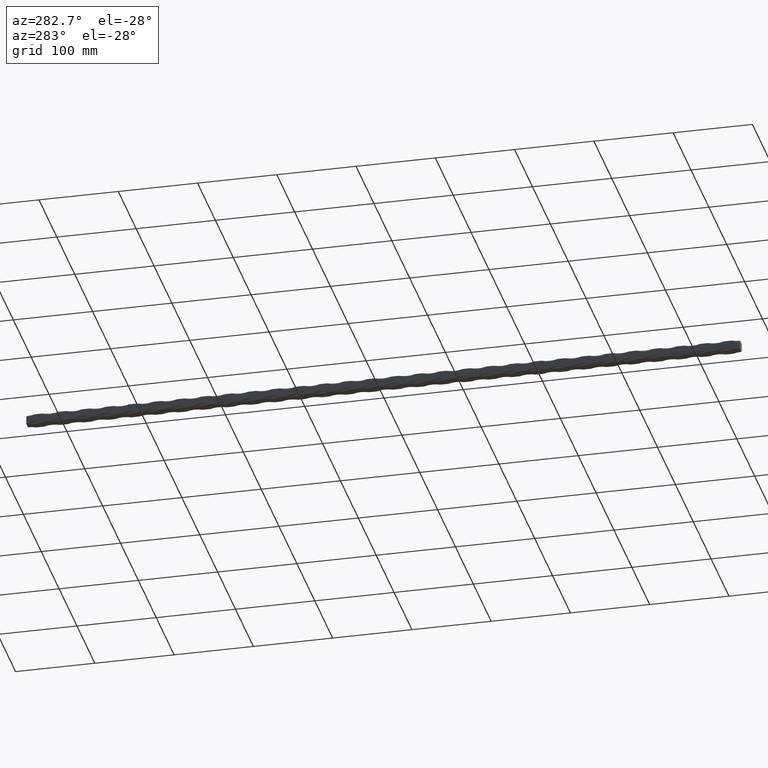
[diagram: clean part render]
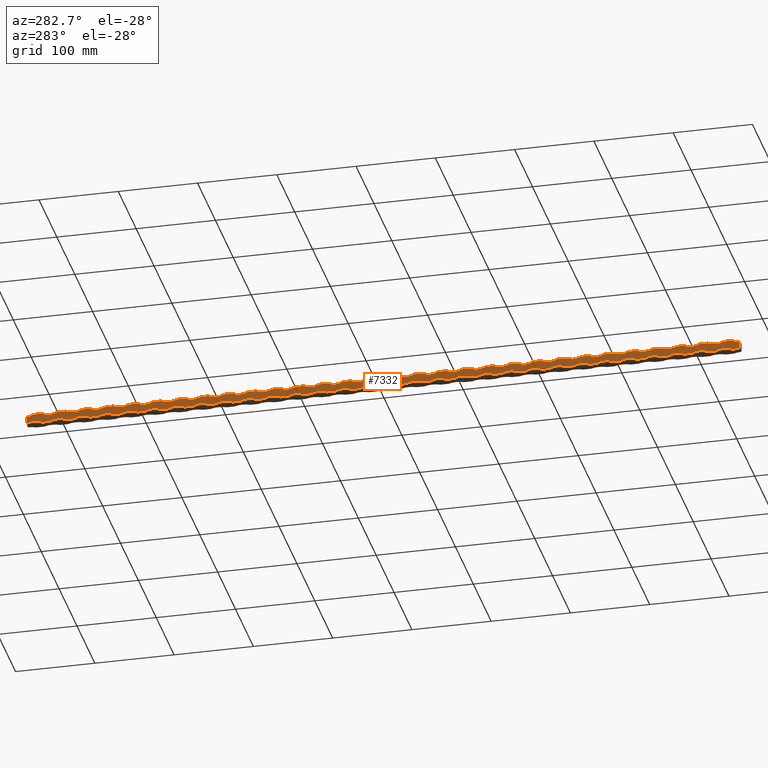
[diagram: same view with one face highlighted and labeled with its STEP entity id]
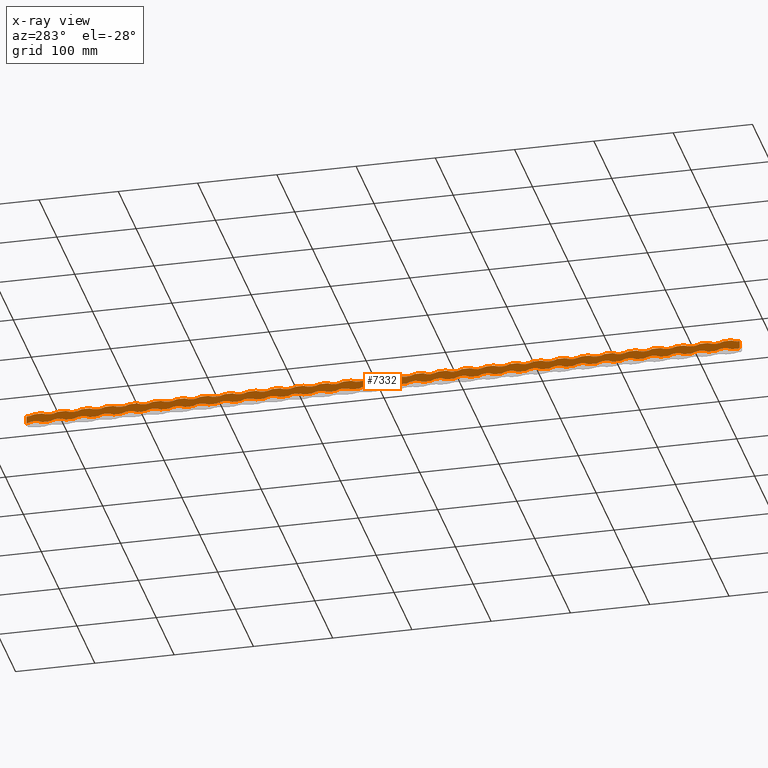
[diagram: x-ray of the same camera — body ghosted, the highlighted face saturated]
A machine part, auxiliary view. The second image highlights one B-rep face of the part: STEP entity #7332.
The next image is the same camera in x-ray: the body ghosted, the highlighted face saturated — about 0% of this face is hidden behind the body in this view.
In plain terms, the highlighted planar face has unit normal (1, 0, -0).
Its self-contained STEP definition (entity closure, byte-faithful):
#27 = ORIENTED_EDGE ( 'NONE', *, *, #2911, .T. ) ;
#29 = DIRECTION ( 'NONE',  ( -1.445602896647339410E-16, 0.000000000000000000, -1.000000000000000000 ) ) ;
#34 = VERTEX_POINT ( 'NONE', #12454 ) ;
#50 = LINE ( 'NONE', #6046, #11949 ) ;
#57 = ORIENTED_EDGE ( 'NONE', *, *, #11433, .T. ) ;
#61 = VECTOR ( 'NONE', #259, 1000.000000000000000 ) ;
#72 = CARTESIAN_POINT ( 'NONE',  ( -5.999999999999998224, -260.0000000000000000, 6.000000000000000888 ) ) ;
#75 = DIRECTION ( 'NONE',  ( 2.040851148208006026E-16, 0.000000000000000000, 1.000000000000000000 ) ) ;
#76 = EDGE_CURVE ( 'NONE', #1450, #2434, #5172, .T. ) ;
#103 = EDGE_CURVE ( 'NONE', #6562, #3145, #3738, .T. ) ;
#107 = CIRCLE ( 'NONE', #4271, 21.25000000000002487 ) ;
#111 = CARTESIAN_POINT ( 'NONE',  ( -6.000000000000002665, 0.000000000000000000, -5.999999999999963585 ) ) ;
#120 = CARTESIAN_POINT ( 'NONE',  ( -5.999999999999999112, 450.0000000000000000, 6.000000000000000888 ) ) ;
#123 = DIRECTION ( 'NONE',  ( -0.000000000000000000, -1.000000000000000000, -0.000000000000000000 ) ) ;
#126 = DIRECTION ( 'NONE',  ( 2.040851148208006026E-16, -5.224578939412495427E-15, 1.000000000000000000 ) ) ;
#135 = CARTESIAN_POINT ( 'NONE',  ( -5.999999999999999112, 450.0000000000000000, 6.000000000000000888 ) ) ;
#148 = CARTESIAN_POINT ( 'NONE',  ( -6.000000000000006217, -190.0000000000000000, -24.75000000000000000 ) ) ;
#194 = CARTESIAN_POINT ( 'NONE',  ( -5.999999999999999112, 440.0000000000000000, 6.000000000000000888 ) ) ;
#238 = CARTESIAN_POINT ( 'NONE',  ( -5.999999999999998224, -130.0000000000000000, 6.000000000000000888 ) ) ;
#244 = LINE ( 'NONE', #11941, #599 ) ;
#249 = DIRECTION ( 'NONE',  ( -0.000000000000000000, -1.000000000000000000, -0.000000000000000000 ) ) ;
#259 = DIRECTION ( 'NONE',  ( -0.000000000000000000, -1.000000000000000000, -0.000000000000000000 ) ) ;
#267 = DIRECTION ( 'NONE',  ( -1.000000000000000000, -0.000000000000000000, 1.445602896647339410E-16 ) ) ;
#282 = ORIENTED_EDGE ( 'NONE', *, *, #7293, .T. ) ;
#287 = EDGE_CURVE ( 'NONE', #9690, #2734, #779, .T. ) ;
#288 = CARTESIAN_POINT ( 'NONE',  ( -6.000000000000002665, 360.0000000000000568, -5.999999999999932498 ) ) ;
#302 = ORIENTED_EDGE ( 'NONE', *, *, #11224, .F. ) ;
#304 = EDGE_CURVE ( 'NONE', #13097, #12087, #432, .T. ) ;
#358 = EDGE_CURVE ( 'NONE', #9834, #9748, #12272, .T. ) ;
#364 = EDGE_CURVE ( 'NONE', #6249, #7019, #6708, .T. ) ;
#391 = VERTEX_POINT ( 'NONE', #13851 ) ;
#393 = DIRECTION ( 'NONE',  ( -1.632680918566404821E-16, 0.000000000000000000, -1.000000000000000000 ) ) ;
#427 = VERTEX_POINT ( 'NONE', #9162 ) ;
#428 = VERTEX_POINT ( 'NONE', #11579 ) ;
#432 = CIRCLE ( 'NONE', #14119, 21.25000000000002487 ) ;
#436 = VECTOR ( 'NONE', #4771, 1000.000000000000000 ) ;
#468 = VERTEX_POINT ( 'NONE', #10610 ) ;
#472 = VERTEX_POINT ( 'NONE', #8453 ) ;
#480 = EDGE_CURVE ( 'NONE', #14325, #2673, #4978, .T. ) ;
#554 = ORIENTED_EDGE ( 'NONE', *, *, #4806, .F. ) ;
#555 = ORIENTED_EDGE ( 'NONE', *, *, #9133, .T. ) ;
#582 = EDGE_CURVE ( 'NONE', #14335, #11080, #13308, .T. ) ;
#598 = CARTESIAN_POINT ( 'NONE',  ( -6.000000000000000888, 450.0000000000000000, -5.999999999999999112 ) ) ;
#599 = VECTOR ( 'NONE', #14063, 1000.000000000000000 ) ;
#603 = LINE ( 'NONE', #8276, #436 ) ;
#618 = VERTEX_POINT ( 'NONE', #11493 ) ;
#657 = CARTESIAN_POINT ( 'NONE',  ( -6.000000000000002665, 69.99999999999992895, -5.999999999999998224 ) ) ;
#673 = CARTESIAN_POINT ( 'NONE',  ( -5.999999999999998224, 379.9999999999999432, 6.000000000000000888 ) ) ;
#683 = CARTESIAN_POINT ( 'NONE',  ( -5.999999999999996447, 180.0000000000000000, 24.75000000000002487 ) ) ;
#687 = DIRECTION ( 'NONE',  ( -0.000000000000000000, -1.000000000000000000, -0.000000000000000000 ) ) ;
#691 = CARTESIAN_POINT ( 'NONE',  ( -6.000000000000002665, -329.9999999999999432, -5.999999999999992006 ) ) ;
#692 = CIRCLE ( 'NONE', #7326, 21.25000000000002487 ) ;
#728 = EDGE_CURVE ( 'NONE', #11430, #7336, #244, .T. ) ;
#735 = CARTESIAN_POINT ( 'NONE',  ( -5.999999999999996447, 60.00000000000000000, 24.75000000000002487 ) ) ;
#748 = ORIENTED_EDGE ( 'NONE', *, *, #10472, .F. ) ;
#753 = EDGE_CURVE ( 'NONE', #8941, #9520, #5322, .T. ) ;
#757 = ORIENTED_EDGE ( 'NONE', *, *, #582, .T. ) ;
#758 = VERTEX_POINT ( 'NONE', #10022 ) ;
#765 = VECTOR ( 'NONE', #10213, 1000.000000000000000 ) ;
#779 = LINE ( 'NONE', #3454, #61 ) ;
#784 = ORIENTED_EDGE ( 'NONE', *, *, #9221, .F. ) ;
#785 = DIRECTION ( 'NONE',  ( 2.040851148208006026E-16, 0.000000000000000000, 1.000000000000000000 ) ) ;
#792 = CARTESIAN_POINT ( 'NONE',  ( -5.999999999999995559, -149.9999999999999716, 24.75000000000002487 ) ) ;
#813 = DIRECTION ( 'NONE',  ( -0.000000000000000000, -1.000000000000000000, -0.000000000000000000 ) ) ;
#822 = CIRCLE ( 'NONE', #9197, 21.25000000000002487 ) ;
#833 = DIRECTION ( 'NONE',  ( -1.632680918566404821E-16, 0.000000000000000000, -1.000000000000000000 ) ) ;
#846 = CARTESIAN_POINT ( 'NONE',  ( -6.000000000000006217, 440.0000000000000000, -24.74999999999994671 ) ) ;
#848 = EDGE_CURVE ( 'NONE', #1273, #6850, #7741, .T. ) ;
#859 = EDGE_CURVE ( 'NONE', #13096, #428, #4427, .T. ) ;
#871 = ORIENTED_EDGE ( 'NONE', *, *, #6646, .T. ) ;
#876 = ORIENTED_EDGE ( 'NONE', *, *, #1500, .T. ) ;
#887 = DIRECTION ( 'NONE',  ( -1.000000000000000000, -0.000000000000000000, 1.445602896647339410E-16 ) ) ;
#900 = ORIENTED_EDGE ( 'NONE', *, *, #11704, .T. ) ;
#909 = AXIS2_PLACEMENT_3D ( 'NONE', #12333, #8066, #9213 ) ;
#923 = DIRECTION ( 'NONE',  ( 1.445602896647339163E-16, 0.000000000000000000, 1.000000000000000000 ) ) ;
#962 = DIRECTION ( 'NONE',  ( 2.040851148208006026E-16, 0.000000000000000000, 1.000000000000000000 ) ) ;
#967 = VERTEX_POINT ( 'NONE', #8244 ) ;
#968 = CARTESIAN_POINT ( 'NONE',  ( -6.000000000000002665, -320.0000000000000568, -5.999999999999998224 ) ) ;
#975 = VECTOR ( 'NONE', #2995, 1000.000000000000000 ) ;
#1003 = CARTESIAN_POINT ( 'NONE',  ( -5.999999999999998224, -229.9999999999999716, 6.000000000000000888 ) ) ;
#1030 = LINE ( 'NONE', #5919, #13565 ) ;
#1032 = DIRECTION ( 'NONE',  ( 1.000000000000000000, 0.000000000000000000, -2.220446049250313081E-16 ) ) ;
#1056 = LINE ( 'NONE', #3758, #2976 ) ;
#1080 = LINE ( 'NONE', #9742, #9111 ) ;
#1082 = VERTEX_POINT ( 'NONE', #12752 ) ;
#1095 = CARTESIAN_POINT ( 'NONE',  ( -6.000000000000002665, -20.00000000000008882, -5.999999999999998224 ) ) ;
#1102 = EDGE_CURVE ( 'NONE', #9570, #5633, #11778, .T. ) ;
#1111 = CARTESIAN_POINT ( 'NONE',  ( -6.000000000000000888, 450.0000000000000000, -5.999999999999999112 ) ) ;
#1130 = DIRECTION ( 'NONE',  ( 1.000000000000000000, 0.000000000000000000, -2.220446049250313081E-16 ) ) ;
#1140 = EDGE_CURVE ( 'NONE', #12563, #12364, #10165, .T. ) ;
#1141 = CARTESIAN_POINT ( 'NONE',  ( -5.999999999999998224, 350.0000000000000568, 6.000000000000000888 ) ) ;
#1144 = CARTESIAN_POINT ( 'NONE',  ( -6.000000000000000888, 450.0000000000000000, -5.999999999999999112 ) ) ;
#1156 = AXIS2_PLACEMENT_3D ( 'NONE', #13860, #10421, #3873 ) ;
#1162 = DIRECTION ( 'NONE',  ( -0.000000000000000000, -1.000000000000000000, -0.000000000000000000 ) ) ;
#1174 = EDGE_CURVE ( 'NONE', #2734, #3002, #10539, .T. ) ;
#1180 = EDGE_CURVE ( 'NONE', #428, #1450, #9638, .T. ) ;
#1194 = ORIENTED_EDGE ( 'NONE', *, *, #8125, .F. ) ;
#1208 = VECTOR ( 'NONE', #8845, 1000.000000000000000 ) ;
#1247 = CARTESIAN_POINT ( 'NONE',  ( -6.000000000000002665, 9.999999999999877431, -5.999999999999998224 ) ) ;
#1261 = AXIS2_PLACEMENT_3D ( 'NONE', #4348, #5449, #13115 ) ;
#1273 = VERTEX_POINT ( 'NONE', #3932 ) ;
#1278 = DIRECTION ( 'NONE',  ( -0.000000000000000000, -1.000000000000000000, -0.000000000000000000 ) ) ;
#1283 = AXIS2_PLACEMENT_3D ( 'NONE', #3310, #2118, #5548 ) ;
#1345 = DIRECTION ( 'NONE',  ( -1.632680918566404821E-16, 0.000000000000000000, -1.000000000000000000 ) ) ;
#1358 = CARTESIAN_POINT ( 'NONE',  ( -6.000000000000002665, 99.99999999999994316, -5.999999999999998224 ) ) ;
#1396 = DIRECTION ( 'NONE',  ( -0.000000000000000000, -1.000000000000000000, -0.000000000000000000 ) ) ;
#1425 = CARTESIAN_POINT ( 'NONE',  ( -5.999999999999996447, 269.9999999999999432, 24.75000000000002487 ) ) ;
#1438 = CIRCLE ( 'NONE', #10172, 21.25000000000002487 ) ;
#1450 = VERTEX_POINT ( 'NONE', #3728 ) ;
#1464 = ORIENTED_EDGE ( 'NONE', *, *, #8020, .T. ) ;
#1478 = EDGE_CURVE ( 'NONE', #10502, #8957, #3339, .T. ) ;
#1491 = CARTESIAN_POINT ( 'NONE',  ( -5.999999999999999112, 159.9999999999999716, 6.000000000000000888 ) ) ;
#1500 = EDGE_CURVE ( 'NONE', #12716, #9265, #1080, .T. ) ;
#1531 = LINE ( 'NONE', #10046, #12857 ) ;
#1581 = CARTESIAN_POINT ( 'NONE',  ( -5.999999999999998224, 229.9999999999999147, 6.000000000000000888 ) ) ;
#1591 = VECTOR ( 'NONE', #7541, 1000.000000000000000 ) ;
#1601 = EDGE_CURVE ( 'NONE', #12947, #14335, #12420, .T. ) ;
#1684 = VERTEX_POINT ( 'NONE', #13465 ) ;
#1697 = EDGE_CURVE ( 'NONE', #3531, #13644, #5638, .T. ) ;
#1764 = CARTESIAN_POINT ( 'NONE',  ( -5.999999999999999112, -439.9999999999999432, 6.000000000000000888 ) ) ;
#1765 = VECTOR ( 'NONE', #8814, 1000.000000000000000 ) ;
#1766 = VERTEX_POINT ( 'NONE', #8032 ) ;
#1811 = DIRECTION ( 'NONE',  ( 1.000000000000000000, 0.000000000000000000, -2.220446049250313081E-16 ) ) ;
#1872 = EDGE_CURVE ( 'NONE', #10781, #10963, #7201, .T. ) ;
#1878 = AXIS2_PLACEMENT_3D ( 'NONE', #10855, #4339, #5677 ) ;
#1896 = CARTESIAN_POINT ( 'NONE',  ( -5.999999999999995559, -180.0000000000000000, 24.75000000000002487 ) ) ;
#1932 = LINE ( 'NONE', #11785, #4038 ) ;
#1941 = ORIENTED_EDGE ( 'NONE', *, *, #13811, .F. ) ;
#1943 = ORIENTED_EDGE ( 'NONE', *, *, #6560, .F. ) ;
#1962 = ORIENTED_EDGE ( 'NONE', *, *, #4865, .T. ) ;
#1963 = ORIENTED_EDGE ( 'NONE', *, *, #3333, .T. ) ;
#1975 = ORIENTED_EDGE ( 'NONE', *, *, #364, .T. ) ;
#2021 = VERTEX_POINT ( 'NONE', #3095 ) ;
#2025 = VERTEX_POINT ( 'NONE', #6487 ) ;
#2026 = CARTESIAN_POINT ( 'NONE',  ( -5.999999999999999112, 450.0000000000000000, 6.000000000000000888 ) ) ;
#2042 = CARTESIAN_POINT ( 'NONE',  ( -6.000000000000006217, 290.0000000000000000, -24.74999999999996092 ) ) ;
#2047 = AXIS2_PLACEMENT_3D ( 'NONE', #2174, #7668, #6652 ) ;
#2057 = LINE ( 'NONE', #1111, #13019 ) ;
#2058 = EDGE_CURVE ( 'NONE', #11400, #6249, #13985, .T. ) ;
#2068 = VECTOR ( 'NONE', #6961, 1000.000000000000000 ) ;
#2072 = CARTESIAN_POINT ( 'NONE',  ( -6.000000000000000888, -450.0000000000000000, -5.999999999999999112 ) ) ;
#2118 = DIRECTION ( 'NONE',  ( 1.000000000000000000, 0.000000000000000000, -2.220446049250313081E-16 ) ) ;
#2142 = CARTESIAN_POINT ( 'NONE',  ( -5.999999999999999112, 430.0000000000000000, 6.000000000000000888 ) ) ;
#2159 = CARTESIAN_POINT ( 'NONE',  ( -6.000000000000002665, -149.9999999999999716, -5.999999999999976907 ) ) ;
#2174 = CARTESIAN_POINT ( 'NONE',  ( -5.999999999999995559, -270.0000000000000000, 24.75000000000002487 ) ) ;
#2177 = ORIENTED_EDGE ( 'NONE', *, *, #10506, .T. ) ;
#2216 = CARTESIAN_POINT ( 'NONE',  ( -6.000000000000000888, 450.0000000000000000, -5.999999999999999112 ) ) ;
#2223 = DIRECTION ( 'NONE',  ( 1.000000000000000000, 0.000000000000000000, -2.220446049250313081E-16 ) ) ;
#2231 = CARTESIAN_POINT ( 'NONE',  ( -6.000000000000000888, 450.0000000000000000, -5.999999999999999112 ) ) ;
#2243 = LINE ( 'NONE', #3799, #2068 ) ;
#2276 = ORIENTED_EDGE ( 'NONE', *, *, #12513, .T. ) ;
#2281 = CARTESIAN_POINT ( 'NONE',  ( -6.000000000000006217, 49.99999999999998579, -24.74999999999997868 ) ) ;
#2331 = DIRECTION ( 'NONE',  ( 2.040851148208006026E-16, 0.000000000000000000, 1.000000000000000000 ) ) ;
#2336 = VERTEX_POINT ( 'NONE', #238 ) ;
#2362 = CARTESIAN_POINT ( 'NONE',  ( -5.999999999999996447, 300.0000000000000000, 24.75000000000002487 ) ) ;
#2364 = LINE ( 'NONE', #14213, #6643 ) ;
#2387 = AXIS2_PLACEMENT_3D ( 'NONE', #4849, #5836, #4683 ) ;
#2400 = CIRCLE ( 'NONE', #6971, 21.25000000000002487 ) ;
#2402 = AXIS2_PLACEMENT_3D ( 'NONE', #9366, #13739, #6040 ) ;
#2406 = DIRECTION ( 'NONE',  ( -1.632680918566404821E-16, 0.000000000000000000, -1.000000000000000000 ) ) ;
#2412 = CARTESIAN_POINT ( 'NONE',  ( -6.000000000000002665, -380.0000000000000000, -5.999999999999998224 ) ) ;
#2413 = VECTOR ( 'NONE', #10089, 1000.000000000000000 ) ;
#2425 = DIRECTION ( 'NONE',  ( -1.000000000000000000, -0.000000000000000000, 1.445602896647339410E-16 ) ) ;
#2428 = DIRECTION ( 'NONE',  ( 1.000000000000000000, 0.000000000000000000, -2.220446049250313081E-16 ) ) ;
#2434 = VERTEX_POINT ( 'NONE', #4039 ) ;
#2435 = DIRECTION ( 'NONE',  ( 2.040851148208006026E-16, 0.000000000000000000, 1.000000000000000000 ) ) ;
#2453 = VECTOR ( 'NONE', #2515, 1000.000000000000000 ) ;
#2490 = DIRECTION ( 'NONE',  ( -0.000000000000000000, -1.000000000000000000, -0.000000000000000000 ) ) ;
#2494 = DIRECTION ( 'NONE',  ( 2.040851148208006026E-16, 0.000000000000000000, 1.000000000000000000 ) ) ;
#2497 = AXIS2_PLACEMENT_3D ( 'NONE', #1896, #14168, #12003 ) ;
#2503 = ORIENTED_EDGE ( 'NONE', *, *, #3259, .F. ) ;
#2508 = CARTESIAN_POINT ( 'NONE',  ( -6.000000000000006217, -70.00000000000000000, -24.74999999999998934 ) ) ;
#2515 = DIRECTION ( 'NONE',  ( -0.000000000000000000, -1.000000000000000000, -0.000000000000000000 ) ) ;
#2525 = DIRECTION ( 'NONE',  ( -0.000000000000000000, -1.000000000000000000, -0.000000000000000000 ) ) ;
#2529 = EDGE_CURVE ( 'NONE', #2916, #1766, #9260, .T. ) ;
#2553 = VECTOR ( 'NONE', #5378, 1000.000000000000000 ) ;
#2564 = ORIENTED_EDGE ( 'NONE', *, *, #10776, .F. ) ;
#2567 = AXIS2_PLACEMENT_3D ( 'NONE', #2879, #4001, #2775 ) ;
#2584 = CARTESIAN_POINT ( 'NONE',  ( -5.999999999999995559, -29.99999999999997158, 24.75000000000002487 ) ) ;
#2597 = DIRECTION ( 'NONE',  ( 2.040851148208006026E-16, 0.000000000000000000, 1.000000000000000000 ) ) ;
#2625 = VECTOR ( 'NONE', #9464, 1000.000000000000000 ) ;
#2632 = ORIENTED_EDGE ( 'NONE', *, *, #9249, .F. ) ;
#2643 = DIRECTION ( 'NONE',  ( 1.000000000000000000, 0.000000000000000000, -2.220446049250313081E-16 ) ) ;
#2644 = LINE ( 'NONE', #2741, #4208 ) ;
#2659 = ORIENTED_EDGE ( 'NONE', *, *, #14091, .F. ) ;
#2670 = ORIENTED_EDGE ( 'NONE', *, *, #9150, .T. ) ;
#2673 = VERTEX_POINT ( 'NONE', #6080 ) ;
#2696 = ORIENTED_EDGE ( 'NONE', *, *, #12618, .T. ) ;
#2700 = LINE ( 'NONE', #5286, #10189 ) ;
#2704 = DIRECTION ( 'NONE',  ( 2.040851148208006026E-16, 0.000000000000000000, 1.000000000000000000 ) ) ;
#2734 = VERTEX_POINT ( 'NONE', #1764 ) ;
#2741 = CARTESIAN_POINT ( 'NONE',  ( -5.999999999999999112, 450.0000000000000000, 6.000000000000000888 ) ) ;
#2749 = DIRECTION ( 'NONE',  ( -1.000000000000000000, -0.000000000000000000, 1.445602896647339410E-16 ) ) ;
#2775 = DIRECTION ( 'NONE',  ( 2.040851148208006026E-16, 0.000000000000000000, 1.000000000000000000 ) ) ;
#2778 = ORIENTED_EDGE ( 'NONE', *, *, #3188, .F. ) ;
#2781 = CIRCLE ( 'NONE', #9469, 21.25000000000002487 ) ;
#2785 = LINE ( 'NONE', #9046, #11008 ) ;
#2790 = CARTESIAN_POINT ( 'NONE',  ( -5.999999999999999112, 190.0000000000000000, 6.000000000000000888 ) ) ;
#2795 = VERTEX_POINT ( 'NONE', #6181 ) ;
#2799 = EDGE_CURVE ( 'NONE', #6727, #758, #1932, .T. ) ;
#2809 = VERTEX_POINT ( 'NONE', #2838 ) ;
#2819 = ORIENTED_EDGE ( 'NONE', *, *, #12045, .T. ) ;
#2824 = EDGE_CURVE ( 'NONE', #14057, #3951, #8565, .T. ) ;
#2831 = DIRECTION ( 'NONE',  ( -1.632680918566404821E-16, 2.873518416676872485E-14, -1.000000000000000000 ) ) ;
#2835 = AXIS2_PLACEMENT_3D ( 'NONE', #4193, #7606, #10985 ) ;
#2838 = CARTESIAN_POINT ( 'NONE',  ( -5.999999999999998224, 49.99999999999998579, 6.000000000000000888 ) ) ;
#2845 = ORIENTED_EDGE ( 'NONE', *, *, #10375, .T. ) ;
#2877 = VERTEX_POINT ( 'NONE', #5907 ) ;
#2879 = CARTESIAN_POINT ( 'NONE',  ( -6.000000000000006217, -159.9999999999999716, -24.74999999999999645 ) ) ;
#2895 = LINE ( 'NONE', #2072, #975 ) ;
#2901 = DIRECTION ( 'NONE',  ( -0.000000000000000000, -1.000000000000000000, -0.000000000000000000 ) ) ;
#2902 = VERTEX_POINT ( 'NONE', #10525 ) ;
#2911 = EDGE_CURVE ( 'NONE', #5458, #6562, #10494, .T. ) ;
#2914 = DIRECTION ( 'NONE',  ( -1.000000000000000000, -0.000000000000000000, 1.445602896647339410E-16 ) ) ;
#2916 = VERTEX_POINT ( 'NONE', #1581 ) ;
#2947 = DIRECTION ( 'NONE',  ( -0.000000000000000000, -1.000000000000000000, -0.000000000000000000 ) ) ;
#2948 = CARTESIAN_POINT ( 'NONE',  ( -6.000000000000002665, 269.9999999999999432, -5.999999999999940492 ) ) ;
#2949 = AXIS2_PLACEMENT_3D ( 'NONE', #2231, #4485, #29 ) ;
#2967 = LINE ( 'NONE', #4551, #1208 ) ;
#2976 = VECTOR ( 'NONE', #11569, 1000.000000000000000 ) ;
#2995 = DIRECTION ( 'NONE',  ( 1.445602896647339163E-16, 0.000000000000000000, 1.000000000000000000 ) ) ;
#3002 = VERTEX_POINT ( 'NONE', #4230 ) ;
#3005 = CARTESIAN_POINT ( 'NONE',  ( -6.000000000000006217, -339.9999999999999432, -24.75000000000001421 ) ) ;
#3020 = CARTESIAN_POINT ( 'NONE',  ( -6.000000000000006217, -220.0000000000000000, -24.75000000000000355 ) ) ;
#3024 = ORIENTED_EDGE ( 'NONE', *, *, #8682, .T. ) ;
#3052 = DIRECTION ( 'NONE',  ( 2.040851148208006026E-16, 0.000000000000000000, 1.000000000000000000 ) ) ;
#3054 = VECTOR ( 'NONE', #13921, 1000.000000000000000 ) ;
#3056 = CARTESIAN_POINT ( 'NONE',  ( -6.000000000000002665, -290.0000000000001137, -5.999999999999998224 ) ) ;
#3065 = ORIENTED_EDGE ( 'NONE', *, *, #9395, .T. ) ;
#3070 = DIRECTION ( 'NONE',  ( -1.000000000000000000, -0.000000000000000000, 1.445602896647339410E-16 ) ) ;
#3088 = CARTESIAN_POINT ( 'NONE',  ( -5.999999999999995559, -60.00000000000000000, 24.75000000000002487 ) ) ;
#3092 = EDGE_CURVE ( 'NONE', #2795, #3159, #11900, .T. ) ;
#3095 = CARTESIAN_POINT ( 'NONE',  ( -5.999999999999999112, 249.9999999999999432, 6.000000000000000888 ) ) ;
#3107 = VERTEX_POINT ( 'NONE', #1141 ) ;
#3132 = ORIENTED_EDGE ( 'NONE', *, *, #3355, .F. ) ;
#3137 = CIRCLE ( 'NONE', #12174, 21.25000000000002487 ) ;
#3145 = VERTEX_POINT ( 'NONE', #6658 ) ;
#3159 = VERTEX_POINT ( 'NONE', #7787 ) ;
#3162 = CARTESIAN_POINT ( 'NONE',  ( -5.999999999999996447, 239.9999999999999432, 24.75000000000002487 ) ) ;
#3180 = ORIENTED_EDGE ( 'NONE', *, *, #10657, .F. ) ;
#3185 = DIRECTION ( 'NONE',  ( -0.000000000000000000, -1.000000000000000000, -0.000000000000000000 ) ) ;
#3188 = EDGE_CURVE ( 'NONE', #2673, #618, #8212, .T. ) ;
#3195 = VERTEX_POINT ( 'NONE', #3520 ) ;
#3257 = EDGE_CURVE ( 'NONE', #13080, #4825, #7694, .T. ) ;
#3258 = CARTESIAN_POINT ( 'NONE',  ( -5.999999999999999112, 450.0000000000000000, 6.000000000000000888 ) ) ;
#3259 = EDGE_CURVE ( 'NONE', #3195, #5381, #13248, .T. ) ;
#3282 = CARTESIAN_POINT ( 'NONE',  ( -6.000000000000006217, 259.9999999999999432, -24.74999999999996447 ) ) ;
#3310 = CARTESIAN_POINT ( 'NONE',  ( -6.000000000000006217, -10.00000000000000888, -24.74999999999998224 ) ) ;
#3327 = ORIENTED_EDGE ( 'NONE', *, *, #4883, .T. ) ;
#3333 = EDGE_CURVE ( 'NONE', #6353, #13096, #9247, .T. ) ;
#3337 = EDGE_CURVE ( 'NONE', #7336, #13839, #5965, .T. ) ;
#3339 = LINE ( 'NONE', #11825, #4072 ) ;
#3354 = ORIENTED_EDGE ( 'NONE', *, *, #1601, .T. ) ;
#3355 = EDGE_CURVE ( 'NONE', #5381, #14325, #10850, .T. ) ;
#3361 = ORIENTED_EDGE ( 'NONE', *, *, #7953, .F. ) ;
#3386 = CARTESIAN_POINT ( 'NONE',  ( -5.999999999999999112, 450.0000000000000000, 6.000000000000000888 ) ) ;
#3422 = CARTESIAN_POINT ( 'NONE',  ( -6.000000000000002665, -80.00000000000008527, -5.999999999999998224 ) ) ;
#3423 = LINE ( 'NONE', #13358, #6077 ) ;
#3426 = CARTESIAN_POINT ( 'NONE',  ( -6.000000000000000888, 450.0000000000000000, -5.999999999999999112 ) ) ;
#3430 = DIRECTION ( 'NONE',  ( -1.000000000000000000, -0.000000000000000000, 1.445602896647339410E-16 ) ) ;
#3436 = LINE ( 'NONE', #598, #14431 ) ;
#3443 = EDGE_CURVE ( 'NONE', #9520, #4740, #12721, .T. ) ;
#3454 = CARTESIAN_POINT ( 'NONE',  ( -5.999999999999999112, 450.0000000000000000, 6.000000000000000888 ) ) ;
#3463 = DIRECTION ( 'NONE',  ( -1.632680918566404821E-16, 0.000000000000000000, -1.000000000000000000 ) ) ;
#3474 = CIRCLE ( 'NONE', #6951, 21.25000000000002487 ) ;
#3485 = LINE ( 'NONE', #9034, #12898 ) ;
#3492 = DIRECTION ( 'NONE',  ( 2.040851148208006026E-16, -5.224578939412495427E-15, 1.000000000000000000 ) ) ;
#3503 = VERTEX_POINT ( 'NONE', #10654 ) ;
#3507 = CARTESIAN_POINT ( 'NONE',  ( -5.999999999999995559, -240.0000000000000000, 24.75000000000002487 ) ) ;
#3517 = VECTOR ( 'NONE', #13703, 1000.000000000000000 ) ;
#3520 = CARTESIAN_POINT ( 'NONE',  ( -6.000000000000000000, 450.0000000000000000, 3.499999999999999112 ) ) ;
#3531 = VERTEX_POINT ( 'NONE', #12856 ) ;
#3538 = DIRECTION ( 'NONE',  ( -1.632680918566404821E-16, 0.000000000000000000, -1.000000000000000000 ) ) ;
#3564 = EDGE_CURVE ( 'NONE', #9748, #472, #14454, .T. ) ;
#3604 = CARTESIAN_POINT ( 'NONE',  ( -6.000000000000000888, 450.0000000000000000, -5.999999999999999112 ) ) ;
#3644 = VECTOR ( 'NONE', #14379, 1000.000000000000000 ) ;
#3664 = CARTESIAN_POINT ( 'NONE',  ( -5.999999999999998224, -380.0000000000000000, 6.000000000000000888 ) ) ;
#3666 = ORIENTED_EDGE ( 'NONE', *, *, #848, .F. ) ;
#3709 = CARTESIAN_POINT ( 'NONE',  ( -6.000000000000006217, 139.9999999999999716, -24.74999999999997513 ) ) ;
#3728 = CARTESIAN_POINT ( 'NONE',  ( -6.000000000000002665, 219.9999999999998010, -5.999999999999998224 ) ) ;
#3738 = LINE ( 'NONE', #9139, #7067 ) ;
#3740 = ORIENTED_EDGE ( 'NONE', *, *, #2058, .T. ) ;
#3757 = DIRECTION ( 'NONE',  ( -1.000000000000000000, -0.000000000000000000, 1.445602896647339410E-16 ) ) ;
#3758 = CARTESIAN_POINT ( 'NONE',  ( -5.999999999999999112, 450.0000000000000000, 6.000000000000000888 ) ) ;
#3773 = CARTESIAN_POINT ( 'NONE',  ( -6.000000000000006217, -430.0000000000000000, -24.75000000000002132 ) ) ;
#3774 = CARTESIAN_POINT ( 'NONE',  ( -5.999999999999999112, 100.0000000000000284, 6.000000000000000888 ) ) ;
#3799 = CARTESIAN_POINT ( 'NONE',  ( -5.999999999999999112, 450.0000000000000000, 6.000000000000000888 ) ) ;
#3812 = AXIS2_PLACEMENT_3D ( 'NONE', #7024, #2643, #2494 ) ;
#3814 = DIRECTION ( 'NONE',  ( -0.000000000000000000, -1.000000000000000000, -0.000000000000000000 ) ) ;
#3815 = DIRECTION ( 'NONE',  ( 1.000000000000000000, 0.000000000000000000, -2.220446049250313081E-16 ) ) ;
#3863 = VERTEX_POINT ( 'NONE', #13865 ) ;
#3869 = CARTESIAN_POINT ( 'NONE',  ( -6.000000000000006217, 410.0000000000000000, -24.74999999999995026 ) ) ;
#3873 = DIRECTION ( 'NONE',  ( 2.040851148208006026E-16, 0.000000000000000000, 1.000000000000000000 ) ) ;
#3883 = CARTESIAN_POINT ( 'NONE',  ( -5.999999999999995559, -360.0000000000000000, 24.75000000000002487 ) ) ;
#3918 = CARTESIAN_POINT ( 'NONE',  ( -5.999999999999996447, 420.0000000000000000, 24.75000000000002487 ) ) ;
#3932 = CARTESIAN_POINT ( 'NONE',  ( -5.999999999999998224, -39.99999999999998579, 6.000000000000000888 ) ) ;
#3951 = VERTEX_POINT ( 'NONE', #657 ) ;
#3955 = LINE ( 'NONE', #10787, #3054 ) ;
#3956 = ORIENTED_EDGE ( 'NONE', *, *, #8491, .F. ) ;
#3986 = CARTESIAN_POINT ( 'NONE',  ( -6.000000000000002665, -90.00000000000002842, -5.999999999999971578 ) ) ;
#3995 = AXIS2_PLACEMENT_3D ( 'NONE', #2281, #10125, #3492 ) ;
#3996 = CARTESIAN_POINT ( 'NONE',  ( -5.999999999999996447, 149.9999999999999716, 24.75000000000002487 ) ) ;
#3999 = CARTESIAN_POINT ( 'NONE',  ( -6.000000000000000888, -450.0000000000000000, -5.999999999999999112 ) ) ;
#4001 = DIRECTION ( 'NONE',  ( 1.000000000000000000, 0.000000000000000000, -2.220446049250313081E-16 ) ) ;
#4023 = CARTESIAN_POINT ( 'NONE',  ( -5.999999999999995559, -120.0000000000000000, 24.75000000000002487 ) ) ;
#4032 = ORIENTED_EDGE ( 'NONE', *, *, #5444, .F. ) ;
#4037 = AXIS2_PLACEMENT_3D ( 'NONE', #2508, #4856, #6982 ) ;
#4038 = VECTOR ( 'NONE', #12815, 1000.000000000000000 ) ;
#4039 = CARTESIAN_POINT ( 'NONE',  ( -6.000000000000002665, 210.0000000000000284, -5.999999999999945821 ) ) ;
#4049 = EDGE_CURVE ( 'NONE', #14046, #3531, #4542, .T. ) ;
#4066 = VERTEX_POINT ( 'NONE', #5215 ) ;
#4068 = CARTESIAN_POINT ( 'NONE',  ( -6.000000000000002665, 399.9999999999997726, -5.999999999999998224 ) ) ;
#4072 = VECTOR ( 'NONE', #7431, 1000.000000000000000 ) ;
#4094 = CIRCLE ( 'NONE', #2047, 21.25000000000002487 ) ;
#4117 = DIRECTION ( 'NONE',  ( -1.632680918566404821E-16, 0.000000000000000000, -1.000000000000000000 ) ) ;
#4141 = DIRECTION ( 'NONE',  ( -1.000000000000000000, -0.000000000000000000, 1.445602896647339410E-16 ) ) ;
#4193 = CARTESIAN_POINT ( 'NONE',  ( -6.000000000000006217, -310.0000000000000000, -24.75000000000001066 ) ) ;
#4198 = ORIENTED_EDGE ( 'NONE', *, *, #10778, .T. ) ;
#4204 = DIRECTION ( 'NONE',  ( -1.632680918566404821E-16, 0.000000000000000000, -1.000000000000000000 ) ) ;
#4208 = VECTOR ( 'NONE', #9444, 1000.000000000000000 ) ;
#4209 = CARTESIAN_POINT ( 'NONE',  ( -5.999999999999998224, -430.0000000000000000, 6.000000000000000888 ) ) ;
#4230 = CARTESIAN_POINT ( 'NONE',  ( -5.999999999999999112, -450.0000000000000000, 3.499999999999998668 ) ) ;
#4271 = AXIS2_PLACEMENT_3D ( 'NONE', #3883, #10577, #7145 ) ;
#4305 = EDGE_CURVE ( 'NONE', #3863, #10473, #10834, .T. ) ;
#4314 = DIRECTION ( 'NONE',  ( -1.000000000000000000, -0.000000000000000000, 1.445602896647339410E-16 ) ) ;
#4339 = DIRECTION ( 'NONE',  ( 1.000000000000000000, 0.000000000000000000, -2.220446049250313081E-16 ) ) ;
#4348 = CARTESIAN_POINT ( 'NONE',  ( -5.999999999999995559, 0.000000000000000000, 24.75000000000002487 ) ) ;
#4363 = AXIS2_PLACEMENT_3D ( 'NONE', #4569, #11350, #5663 ) ;
#4371 = EDGE_LOOP ( 'NONE', ( #3024, #5983, #2670, #7353, #5865, #2659, #8787, #4032, #10590, #14042, #784, #13594, #9800, #6495, #2632, #2564, #3180, #5022, #1194, #1941, #13876, #6698, #11839, #10127, #13273, #10752, #13291, #11099, #12106, #748, #3666, #12445, #7863, #3956, #1943, #13244, #6524, #8658, #10326, #8936, #13496, #10596, #10602, #3361, #12253, #7674, #554, #13404, #5087, #302, #8740, #12234, #12991, #8294, #8021, #4760, #12942, #12935, #8037, #13506, #2778, #6799, #3132, #2503, #14032, #12118, #8078, #7690, #13406, #3065, #7931, #4568, #12126, #5810, #12718, #900, #6184, #1963, #11642, #6215, #5699, #2177, #876, #2276, #282, #6703, #12945, #6993, #10647, #13782, #4381, #5179, #2819, #10222, #57, #4198, #7702, #13152, #8366, #9998, #2696, #2845, #5266, #10551, #12993, #10210, #4784, #14464, #12283, #3740, #1975, #13929, #7207, #871, #555, #3354, #757, #1464, #1962, #27, #8873, #3327, #12245 ) ) ;
#4378 = EDGE_CURVE ( 'NONE', #9467, #7881, #2781, .T. ) ;
#4381 = ORIENTED_EDGE ( 'NONE', *, *, #14011, .T. ) ;
#4418 = CARTESIAN_POINT ( 'NONE',  ( -5.999999999999995559, -90.00000000000002842, 24.75000000000002487 ) ) ;
#4422 = DIRECTION ( 'NONE',  ( -0.000000000000000000, -1.000000000000000000, -0.000000000000000000 ) ) ;
#4427 = LINE ( 'NONE', #3426, #8261 ) ;
#4461 = AXIS2_PLACEMENT_3D ( 'NONE', #7937, #2425, #3538 ) ;
#4485 = DIRECTION ( 'NONE',  ( 1.000000000000000000, 0.000000000000000000, -1.445602896647339410E-16 ) ) ;
#4540 = DIRECTION ( 'NONE',  ( 2.040851148208006026E-16, 0.000000000000000000, 1.000000000000000000 ) ) ;
#4542 = CIRCLE ( 'NONE', #6297, 21.25000000000002487 ) ;
#4551 = CARTESIAN_POINT ( 'NONE',  ( -5.999999999999999112, 450.0000000000000000, 6.000000000000000888 ) ) ;
#4564 = EDGE_CURVE ( 'NONE', #8107, #4949, #12723, .T. ) ;
#4568 = ORIENTED_EDGE ( 'NONE', *, *, #8692, .T. ) ;
#4569 = CARTESIAN_POINT ( 'NONE',  ( -5.999999999999996447, 210.0000000000000284, 24.75000000000002487 ) ) ;
#4641 = LINE ( 'NONE', #2026, #14068 ) ;
#4656 = CIRCLE ( 'NONE', #3995, 21.25000000000002487 ) ;
#4661 = EDGE_CURVE ( 'NONE', #13839, #9426, #4718, .T. ) ;
#4683 = DIRECTION ( 'NONE',  ( -1.632680918566404821E-16, 0.000000000000000000, -1.000000000000000000 ) ) ;
#4684 = AXIS2_PLACEMENT_3D ( 'NONE', #3709, #8191, #2597 ) ;
#4691 = VECTOR ( 'NONE', #5350, 1000.000000000000000 ) ;
#4697 = VERTEX_POINT ( 'NONE', #10097 ) ;
#4699 = CARTESIAN_POINT ( 'NONE',  ( -6.000000000000002665, 339.9999999999998863, -5.999999999999998224 ) ) ;
#4715 = AXIS2_PLACEMENT_3D ( 'NONE', #6052, #7254, #13705 ) ;
#4718 = LINE ( 'NONE', #2216, #9064 ) ;
#4740 = VERTEX_POINT ( 'NONE', #3422 ) ;
#4746 = CARTESIAN_POINT ( 'NONE',  ( -5.999999999999999112, 450.0000000000000000, 6.000000000000000888 ) ) ;
#4760 = ORIENTED_EDGE ( 'NONE', *, *, #6927, .F. ) ;
#4771 = DIRECTION ( 'NONE',  ( -0.000000000000000000, -1.000000000000000000, -0.000000000000000000 ) ) ;
#4777 = EDGE_CURVE ( 'NONE', #6615, #14171, #3137, .T. ) ;
#4784 = ORIENTED_EDGE ( 'NONE', *, *, #7005, .T. ) ;
#4785 = VECTOR ( 'NONE', #4422, 1000.000000000000000 ) ;
#4789 = CIRCLE ( 'NONE', #7748, 21.25000000000002487 ) ;
#4806 = EDGE_CURVE ( 'NONE', #13351, #9570, #8889, .T. ) ;
#4825 = VERTEX_POINT ( 'NONE', #3664 ) ;
#4849 = CARTESIAN_POINT ( 'NONE',  ( -5.999999999999996447, 330.0000000000000000, 24.75000000000002487 ) ) ;
#4850 = CARTESIAN_POINT ( 'NONE',  ( -6.000000000000000888, 450.0000000000000000, -5.999999999999999112 ) ) ;
#4856 = DIRECTION ( 'NONE',  ( 1.000000000000000000, 0.000000000000000000, -2.220446049250313081E-16 ) ) ;
#4865 = EDGE_CURVE ( 'NONE', #10220, #5458, #12897, .T. ) ;
#4883 = EDGE_CURVE ( 'NONE', #3145, #12763, #14122, .T. ) ;
#4888 = CARTESIAN_POINT ( 'NONE',  ( -6.000000000000002665, -240.0000000000000000, -5.999999999999984901 ) ) ;
#4890 = EDGE_CURVE ( 'NONE', #967, #12128, #5593, .T. ) ;
#4891 = DIRECTION ( 'NONE',  ( -0.000000000000000000, -1.000000000000000000, -0.000000000000000000 ) ) ;
#4898 = CARTESIAN_POINT ( 'NONE',  ( -6.000000000000002665, -140.0000000000000568, -5.999999999999998224 ) ) ;
#4909 = VECTOR ( 'NONE', #5891, 1000.000000000000000 ) ;
#4920 = AXIS2_PLACEMENT_3D ( 'NONE', #3020, #6424, #12011 ) ;
#4942 = VECTOR ( 'NONE', #2947, 1000.000000000000000 ) ;
#4946 = CARTESIAN_POINT ( 'NONE',  ( -5.999999999999999112, 340.0000000000000000, 6.000000000000000888 ) ) ;
#4949 = VERTEX_POINT ( 'NONE', #11593 ) ;
#4978 = CIRCLE ( 'NONE', #6416, 21.25000000000002487 ) ;
#5006 = VECTOR ( 'NONE', #14254, 1000.000000000000000 ) ;
#5015 = CARTESIAN_POINT ( 'NONE',  ( -5.999999999999995559, -329.9999999999999432, 24.75000000000002487 ) ) ;
#5022 = ORIENTED_EDGE ( 'NONE', *, *, #304, .F. ) ;
#5024 = AXIS2_PLACEMENT_3D ( 'NONE', #6278, #8500, #4204 ) ;
#5029 = CARTESIAN_POINT ( 'NONE',  ( -5.999999999999998224, -10.00000000000001421, 6.000000000000000888 ) ) ;
#5087 = ORIENTED_EDGE ( 'NONE', *, *, #2529, .F. ) ;
#5106 = DIRECTION ( 'NONE',  ( -1.632680918566404821E-16, 0.000000000000000000, -1.000000000000000000 ) ) ;
#5150 = AXIS2_PLACEMENT_3D ( 'NONE', #7043, #9204, #11139 ) ;
#5160 = DIRECTION ( 'NONE',  ( 2.040851148208006026E-16, 0.000000000000000000, 1.000000000000000000 ) ) ;
#5172 = LINE ( 'NONE', #5869, #12785 ) ;
#5179 = ORIENTED_EDGE ( 'NONE', *, *, #7788, .T. ) ;
#5215 = CARTESIAN_POINT ( 'NONE',  ( -6.000000000000002665, -120.0000000000000000, -5.999999999999974243 ) ) ;
#5266 = ORIENTED_EDGE ( 'NONE', *, *, #7038, .T. ) ;
#5279 = CARTESIAN_POINT ( 'NONE',  ( -5.999999999999998224, 110.0000000000000426, 6.000000000000000888 ) ) ;
#5286 = CARTESIAN_POINT ( 'NONE',  ( -6.000000000000000888, 450.0000000000000000, -5.999999999999999112 ) ) ;
#5292 = CARTESIAN_POINT ( 'NONE',  ( -6.000000000000002665, -360.0000000000000000, -5.999999999999994671 ) ) ;
#5293 = VECTOR ( 'NONE', #7952, 1000.000000000000000 ) ;
#5322 = LINE ( 'NONE', #9567, #13295 ) ;
#5350 = DIRECTION ( 'NONE',  ( -0.000000000000000000, -1.000000000000000000, -0.000000000000000000 ) ) ;
#5377 = CARTESIAN_POINT ( 'NONE',  ( -6.000000000000000888, 450.0000000000000000, -5.999999999999999112 ) ) ;
#5378 = DIRECTION ( 'NONE',  ( -0.000000000000000000, -1.000000000000000000, -0.000000000000000000 ) ) ;
#5379 = VECTOR ( 'NONE', #9276, 1000.000000000000000 ) ;
#5381 = VERTEX_POINT ( 'NONE', #194 ) ;
#5407 = LINE ( 'NONE', #7720, #2413 ) ;
#5444 = EDGE_CURVE ( 'NONE', #4825, #9826, #8378, .T. ) ;
#5448 = EDGE_CURVE ( 'NONE', #7019, #391, #3474, .T. ) ;
#5449 = DIRECTION ( 'NONE',  ( -1.000000000000000000, -0.000000000000000000, 1.445602896647339410E-16 ) ) ;
#5454 = CIRCLE ( 'NONE', #13220, 21.25000000000002487 ) ;
#5458 = VERTEX_POINT ( 'NONE', #5292 ) ;
#5472 = EDGE_CURVE ( 'NONE', #6372, #3195, #12043, .T. ) ;
#5520 = CARTESIAN_POINT ( 'NONE',  ( -5.999999999999996447, 450.0000000000000000, 24.75000000000002487 ) ) ;
#5547 = CARTESIAN_POINT ( 'NONE',  ( -5.999999999999999112, 310.0000000000000000, 6.000000000000000888 ) ) ;
#5548 = DIRECTION ( 'NONE',  ( 2.040851148208006026E-16, 0.000000000000000000, 1.000000000000000000 ) ) ;
#5576 = CARTESIAN_POINT ( 'NONE',  ( -6.000000000000002665, 129.9999999999998295, -5.999999999999998224 ) ) ;
#5580 = DIRECTION ( 'NONE',  ( 1.000000000000000000, 0.000000000000000000, -2.220446049250313081E-16 ) ) ;
#5593 = LINE ( 'NONE', #7099, #2625 ) ;
#5632 = CARTESIAN_POINT ( 'NONE',  ( -6.000000000000006217, -280.0000000000000000, -24.75000000000000711 ) ) ;
#5633 = VERTEX_POINT ( 'NONE', #14106 ) ;
#5638 = LINE ( 'NONE', #135, #9806 ) ;
#5663 = DIRECTION ( 'NONE',  ( -1.632680918566404821E-16, 0.000000000000000000, -1.000000000000000000 ) ) ;
#5677 = DIRECTION ( 'NONE',  ( 2.040851148208006026E-16, 0.000000000000000000, 1.000000000000000000 ) ) ;
#5699 = ORIENTED_EDGE ( 'NONE', *, *, #76, .T. ) ;
#5720 = CARTESIAN_POINT ( 'NONE',  ( -5.999999999999998224, 259.9999999999999432, 6.000000000000000888 ) ) ;
#5786 = VERTEX_POINT ( 'NONE', #1358 ) ;
#5810 = ORIENTED_EDGE ( 'NONE', *, *, #11060, .T. ) ;
#5813 = CARTESIAN_POINT ( 'NONE',  ( -6.000000000000000888, 450.0000000000000000, -5.999999999999999112 ) ) ;
#5836 = DIRECTION ( 'NONE',  ( -1.000000000000000000, -0.000000000000000000, 1.445602896647339410E-16 ) ) ;
#5855 = DIRECTION ( 'NONE',  ( 2.040851148208006026E-16, 0.000000000000000000, 1.000000000000000000 ) ) ;
#5860 = CARTESIAN_POINT ( 'NONE',  ( -5.999999999999998224, -19.99999999999996092, 6.000000000000000888 ) ) ;
#5865 = ORIENTED_EDGE ( 'NONE', *, *, #287, .F. ) ;
#5869 = CARTESIAN_POINT ( 'NONE',  ( -6.000000000000000888, 450.0000000000000000, -5.999999999999999112 ) ) ;
#5872 = DIRECTION ( 'NONE',  ( -1.000000000000000000, -0.000000000000000000, 1.445602896647339410E-16 ) ) ;
#5891 = DIRECTION ( 'NONE',  ( -0.000000000000000000, -1.000000000000000000, -0.000000000000000000 ) ) ;
#5907 = CARTESIAN_POINT ( 'NONE',  ( -5.999999999999999112, 39.99999999999997868, 6.000000000000000888 ) ) ;
#5916 = EDGE_CURVE ( 'NONE', #10122, #3107, #10645, .T. ) ;
#5919 = CARTESIAN_POINT ( 'NONE',  ( -5.999999999999999112, 450.0000000000000000, 6.000000000000000888 ) ) ;
#5920 = EDGE_CURVE ( 'NONE', #3159, #7160, #8711, .T. ) ;
#5965 = CIRCLE ( 'NONE', #10789, 21.25000000000002487 ) ;
#5980 = CIRCLE ( 'NONE', #1878, 21.25000000000002487 ) ;
#5983 = ORIENTED_EDGE ( 'NONE', *, *, #10296, .T. ) ;
#6013 = VERTEX_POINT ( 'NONE', #7756 ) ;
#6024 = AXIS2_PLACEMENT_3D ( 'NONE', #4418, #12196, #3463 ) ;
#6040 = DIRECTION ( 'NONE',  ( 2.040851148208006026E-16, 5.224578939412495427E-15, 1.000000000000000000 ) ) ;
#6046 = CARTESIAN_POINT ( 'NONE',  ( -5.999999999999999112, 450.0000000000000000, 6.000000000000000888 ) ) ;
#6052 = CARTESIAN_POINT ( 'NONE',  ( -6.000000000000006217, -370.0000000000000000, -24.75000000000001421 ) ) ;
#6077 = VECTOR ( 'NONE', #14405, 1000.000000000000000 ) ;
#6080 = CARTESIAN_POINT ( 'NONE',  ( -5.999999999999998224, 410.0000000000000000, 6.000000000000000888 ) ) ;
#6122 = AXIS2_PLACEMENT_3D ( 'NONE', #9502, #10498, #2831 ) ;
#6181 = CARTESIAN_POINT ( 'NONE',  ( -5.999999999999998224, -80.00000000000001421, 6.000000000000000888 ) ) ;
#6184 = ORIENTED_EDGE ( 'NONE', *, *, #10082, .T. ) ;
#6207 = CIRCLE ( 'NONE', #8850, 21.25000000000002487 ) ;
#6210 = EDGE_CURVE ( 'NONE', #14171, #9467, #2243, .T. ) ;
#6215 = ORIENTED_EDGE ( 'NONE', *, *, #1180, .T. ) ;
#6246 = CARTESIAN_POINT ( 'NONE',  ( -5.999999999999998224, -250.0000000000000000, 6.000000000000000888 ) ) ;
#6249 = VERTEX_POINT ( 'NONE', #10441 ) ;
#6272 = DIRECTION ( 'NONE',  ( 2.040851148208006026E-16, 0.000000000000000000, 1.000000000000000000 ) ) ;
#6274 = CARTESIAN_POINT ( 'NONE',  ( -5.999999999999996447, 360.0000000000000568, 24.75000000000002487 ) ) ;
#6275 = AXIS2_PLACEMENT_3D ( 'NONE', #792, #10652, #5106 ) ;
#6278 = CARTESIAN_POINT ( 'NONE',  ( -5.999999999999995559, -210.0000000000000000, 24.75000000000002487 ) ) ;
#6297 = AXIS2_PLACEMENT_3D ( 'NONE', #14336, #887, #14244 ) ;
#6324 = DIRECTION ( 'NONE',  ( 1.000000000000000000, 0.000000000000000000, -2.220446049250313081E-16 ) ) ;
#6332 = VERTEX_POINT ( 'NONE', #5279 ) ;
#6348 = CARTESIAN_POINT ( 'NONE',  ( -6.000000000000002665, 180.0000000000000000, -5.999999999999948486 ) ) ;
#6353 = VERTEX_POINT ( 'NONE', #2948 ) ;
#6370 = DIRECTION ( 'NONE',  ( -1.632680918566404821E-16, 0.000000000000000000, -1.000000000000000000 ) ) ;
#6372 = VERTEX_POINT ( 'NONE', #8710 ) ;
#6416 = AXIS2_PLACEMENT_3D ( 'NONE', #3918, #7233, #8347 ) ;
#6424 = DIRECTION ( 'NONE',  ( 1.000000000000000000, 0.000000000000000000, -2.220446049250313081E-16 ) ) ;
#6436 = CIRCLE ( 'NONE', #2497, 21.25000000000002487 ) ;
#6474 = CIRCLE ( 'NONE', #5024, 21.25000000000002487 ) ;
#6487 = CARTESIAN_POINT ( 'NONE',  ( -5.999999999999998224, -280.0000000000000000, 6.000000000000000888 ) ) ;
#6495 = ORIENTED_EDGE ( 'NONE', *, *, #4049, .F. ) ;
#6516 = LINE ( 'NONE', #10321, #3517 ) ;
#6524 = ORIENTED_EDGE ( 'NONE', *, *, #10290, .F. ) ;
#6560 = EDGE_CURVE ( 'NONE', #427, #9348, #5407, .T. ) ;
#6562 = VERTEX_POINT ( 'NONE', #2412 ) ;
#6565 = VERTEX_POINT ( 'NONE', #111 ) ;
#6603 = DIRECTION ( 'NONE',  ( -1.632680918566404821E-16, 0.000000000000000000, -1.000000000000000000 ) ) ;
#6613 = CARTESIAN_POINT ( 'NONE',  ( -5.999999999999998224, 320.0000000000000000, 6.000000000000000888 ) ) ;
#6615 = VERTEX_POINT ( 'NONE', #5547 ) ;
#6643 = VECTOR ( 'NONE', #813, 1000.000000000000000 ) ;
#6646 = EDGE_CURVE ( 'NONE', #1684, #9944, #7129, .T. ) ;
#6652 = DIRECTION ( 'NONE',  ( -1.632680918566404821E-16, 0.000000000000000000, -1.000000000000000000 ) ) ;
#6658 = CARTESIAN_POINT ( 'NONE',  ( -6.000000000000002665, -390.0000000000000000, -5.999999999999997335 ) ) ;
#6698 = ORIENTED_EDGE ( 'NONE', *, *, #8053, .F. ) ;
#6703 = ORIENTED_EDGE ( 'NONE', *, *, #358, .T. ) ;
#6708 = LINE ( 'NONE', #4850, #9312 ) ;
#6727 = VERTEX_POINT ( 'NONE', #9720 ) ;
#6743 = CIRCLE ( 'NONE', #5150, 21.25000000000002487 ) ;
#6749 = CARTESIAN_POINT ( 'NONE',  ( -5.999999999999998224, -350.0000000000000000, 6.000000000000000888 ) ) ;
#6776 = AXIS2_PLACEMENT_3D ( 'NONE', #3996, #2914, #7424 ) ;
#6788 = CARTESIAN_POINT ( 'NONE',  ( -6.000000000000002665, 389.9999999999999432, -5.999999999999929834 ) ) ;
#6799 = ORIENTED_EDGE ( 'NONE', *, *, #480, .F. ) ;
#6800 = CIRCLE ( 'NONE', #909, 21.25000000000002487 ) ;
#6801 = CARTESIAN_POINT ( 'NONE',  ( -6.000000000000006217, 80.00000000000001421, -24.74999999999997513 ) ) ;
#6808 = DIRECTION ( 'NONE',  ( -0.000000000000000000, -1.000000000000000000, -0.000000000000000000 ) ) ;
#6812 = VECTOR ( 'NONE', #249, 1000.000000000000000 ) ;
#6832 = EDGE_CURVE ( 'NONE', #2336, #12040, #1531, .T. ) ;
#6850 = VERTEX_POINT ( 'NONE', #12152 ) ;
#6869 = CARTESIAN_POINT ( 'NONE',  ( -6.000000000000002665, 420.0000000000000000, -5.999999999999927169 ) ) ;
#6878 = CARTESIAN_POINT ( 'NONE',  ( -6.000000000000002665, -210.0000000000000000, -5.999999999999982236 ) ) ;
#6879 = VECTOR ( 'NONE', #11612, 1000.000000000000000 ) ;
#6921 = DIRECTION ( 'NONE',  ( 1.000000000000000000, 0.000000000000000000, -2.220446049250313081E-16 ) ) ;
#6927 = EDGE_CURVE ( 'NONE', #7031, #8118, #11852, .T. ) ;
#6935 = CIRCLE ( 'NONE', #9490, 21.25000000000002487 ) ;
#6951 = AXIS2_PLACEMENT_3D ( 'NONE', #11861, #7319, #6272 ) ;
#6961 = DIRECTION ( 'NONE',  ( -0.000000000000000000, -1.000000000000000000, -0.000000000000000000 ) ) ;
#6971 = AXIS2_PLACEMENT_3D ( 'NONE', #2584, #5872, #1345 ) ;
#6982 = DIRECTION ( 'NONE',  ( 2.040851148208006026E-16, -5.224578939412495427E-15, 1.000000000000000000 ) ) ;
#6993 = ORIENTED_EDGE ( 'NONE', *, *, #8588, .T. ) ;
#7005 = EDGE_CURVE ( 'NONE', #12364, #3863, #3436, .T. ) ;
#7019 = VERTEX_POINT ( 'NONE', #4888 ) ;
#7024 = CARTESIAN_POINT ( 'NONE',  ( -6.000000000000006217, 19.99999999999996092, -24.74999999999998224 ) ) ;
#7031 = VERTEX_POINT ( 'NONE', #4946 ) ;
#7033 = LINE ( 'NONE', #12613, #9643 ) ;
#7038 = EDGE_CURVE ( 'NONE', #4697, #4066, #9557, .T. ) ;
#7043 = CARTESIAN_POINT ( 'NONE',  ( -6.000000000000006217, 110.0000000000000426, -24.74999999999997513 ) ) ;
#7067 = VECTOR ( 'NONE', #11305, 1000.000000000000000 ) ;
#7090 = LINE ( 'NONE', #7494, #5006 ) ;
#7091 = VERTEX_POINT ( 'NONE', #12903 ) ;
#7094 = CARTESIAN_POINT ( 'NONE',  ( -5.999999999999999112, 130.0000000000000568, 6.000000000000000888 ) ) ;
#7099 = CARTESIAN_POINT ( 'NONE',  ( -5.999999999999999112, 450.0000000000000000, 6.000000000000000888 ) ) ;
#7116 = CIRCLE ( 'NONE', #13476, 21.25000000000002487 ) ;
#7129 = CIRCLE ( 'NONE', #14333, 21.25000000000002487 ) ;
#7137 = DIRECTION ( 'NONE',  ( -1.632680918566404821E-16, 0.000000000000000000, -1.000000000000000000 ) ) ;
#7145 = DIRECTION ( 'NONE',  ( -1.632680918566404821E-16, 0.000000000000000000, -1.000000000000000000 ) ) ;
#7160 = VERTEX_POINT ( 'NONE', #9790 ) ;
#7162 = VECTOR ( 'NONE', #8786, 1000.000000000000000 ) ;
#7201 = LINE ( 'NONE', #7461, #4942 ) ;
#7207 = ORIENTED_EDGE ( 'NONE', *, *, #7413, .T. ) ;
#7222 = CIRCLE ( 'NONE', #12680, 21.25000000000002487 ) ;
#7223 = VERTEX_POINT ( 'NONE', #1247 ) ;
#7233 = DIRECTION ( 'NONE',  ( -1.000000000000000000, -0.000000000000000000, 1.445602896647339410E-16 ) ) ;
#7244 = AXIS2_PLACEMENT_3D ( 'NONE', #11828, #12955, #6370 ) ;
#7254 = DIRECTION ( 'NONE',  ( 1.000000000000000000, 0.000000000000000000, -2.220446049250313081E-16 ) ) ;
#7270 = CIRCLE ( 'NONE', #1261, 21.25000000000002487 ) ;
#7279 = CARTESIAN_POINT ( 'NONE',  ( -6.000000000000006217, 320.0000000000000000, -24.74999999999995737 ) ) ;
#7291 = EDGE_CURVE ( 'NONE', #4066, #8745, #6935, .T. ) ;
#7293 = EDGE_CURVE ( 'NONE', #3503, #9834, #14422, .T. ) ;
#7314 = EDGE_CURVE ( 'NONE', #10473, #11400, #2057, .T. ) ;
#7319 = DIRECTION ( 'NONE',  ( 1.000000000000000000, 0.000000000000000000, -2.220446049250313081E-16 ) ) ;
#7326 = AXIS2_PLACEMENT_3D ( 'NONE', #9551, #3757, #393 ) ;
#7332 = ADVANCED_FACE ( 'NONE', ( #9888 ), #14447, .F. ) ;
#7336 = VERTEX_POINT ( 'NONE', #6869 ) ;
#7338 = VERTEX_POINT ( 'NONE', #288 ) ;
#7353 = ORIENTED_EDGE ( 'NONE', *, *, #1174, .F. ) ;
#7379 = DIRECTION ( 'NONE',  ( -1.632680918566404821E-16, 0.000000000000000000, -1.000000000000000000 ) ) ;
#7381 = EDGE_CURVE ( 'NONE', #12004, #1273, #2400, .T. ) ;
#7410 = CIRCLE ( 'NONE', #6275, 21.25000000000002487 ) ;
#7413 = EDGE_CURVE ( 'NONE', #391, #1684, #13913, .T. ) ;
#7424 = DIRECTION ( 'NONE',  ( -1.632680918566404821E-16, 0.000000000000000000, -1.000000000000000000 ) ) ;
#7431 = DIRECTION ( 'NONE',  ( -0.000000000000000000, -1.000000000000000000, -0.000000000000000000 ) ) ;
#7461 = CARTESIAN_POINT ( 'NONE',  ( -5.999999999999999112, 450.0000000000000000, 6.000000000000000888 ) ) ;
#7494 = CARTESIAN_POINT ( 'NONE',  ( -5.999999999999999112, 450.0000000000000000, 6.000000000000000888 ) ) ;
#7541 = DIRECTION ( 'NONE',  ( -0.000000000000000000, -1.000000000000000000, -0.000000000000000000 ) ) ;
#7568 = VERTEX_POINT ( 'NONE', #673 ) ;
#7569 = CARTESIAN_POINT ( 'NONE',  ( -5.999999999999996447, 90.00000000000002842, 24.75000000000002487 ) ) ;
#7606 = DIRECTION ( 'NONE',  ( 1.000000000000000000, 0.000000000000000000, -2.220446049250313081E-16 ) ) ;
#7668 = DIRECTION ( 'NONE',  ( -1.000000000000000000, -0.000000000000000000, 1.445602896647339410E-16 ) ) ;
#7674 = ORIENTED_EDGE ( 'NONE', *, *, #1102, .F. ) ;
#7690 = ORIENTED_EDGE ( 'NONE', *, *, #3337, .T. ) ;
#7692 = CARTESIAN_POINT ( 'NONE',  ( -6.000000000000002665, 249.9999999999998295, -5.999999999999998224 ) ) ;
#7694 = LINE ( 'NONE', #10111, #1765 ) ;
#7702 = ORIENTED_EDGE ( 'NONE', *, *, #4564, .T. ) ;
#7720 = CARTESIAN_POINT ( 'NONE',  ( -5.999999999999999112, 450.0000000000000000, 6.000000000000000888 ) ) ;
#7739 = EDGE_CURVE ( 'NONE', #7160, #2336, #822, .T. ) ;
#7741 = LINE ( 'NONE', #12254, #4785 ) ;
#7748 = AXIS2_PLACEMENT_3D ( 'NONE', #735, #9600, #7379 ) ;
#7756 = CARTESIAN_POINT ( 'NONE',  ( -5.999999999999998224, -339.9999999999999432, 6.000000000000000888 ) ) ;
#7785 = EDGE_CURVE ( 'NONE', #4949, #8941, #11832, .T. ) ;
#7787 = CARTESIAN_POINT ( 'NONE',  ( -5.999999999999998224, -100.0000000000000284, 6.000000000000000888 ) ) ;
#7788 = EDGE_CURVE ( 'NONE', #34, #10136, #4656, .T. ) ;
#7793 = AXIS2_PLACEMENT_3D ( 'NONE', #683, #10606, #13986 ) ;
#7794 = DIRECTION ( 'NONE',  ( -1.632680918566404821E-16, 0.000000000000000000, -1.000000000000000000 ) ) ;
#7797 = CIRCLE ( 'NONE', #10939, 21.25000000000002487 ) ;
#7856 = DIRECTION ( 'NONE',  ( -0.000000000000000000, -1.000000000000000000, -0.000000000000000000 ) ) ;
#7863 = ORIENTED_EDGE ( 'NONE', *, *, #8527, .F. ) ;
#7865 = DIRECTION ( 'NONE',  ( -1.632680918566404821E-16, 0.000000000000000000, -1.000000000000000000 ) ) ;
#7881 = VERTEX_POINT ( 'NONE', #5720 ) ;
#7931 = ORIENTED_EDGE ( 'NONE', *, *, #8321, .T. ) ;
#7937 = CARTESIAN_POINT ( 'NONE',  ( -5.999999999999996447, 120.0000000000000568, 24.75000000000002487 ) ) ;
#7952 = DIRECTION ( 'NONE',  ( -0.000000000000000000, -1.000000000000000000, -0.000000000000000000 ) ) ;
#7953 = EDGE_CURVE ( 'NONE', #10380, #10781, #9721, .T. ) ;
#7993 = CARTESIAN_POINT ( 'NONE',  ( -6.000000000000000888, 450.0000000000000000, -5.999999999999999112 ) ) ;
#8020 = EDGE_CURVE ( 'NONE', #11080, #10220, #7116, .T. ) ;
#8021 = ORIENTED_EDGE ( 'NONE', *, *, #14102, .F. ) ;
#8032 = CARTESIAN_POINT ( 'NONE',  ( -5.999999999999999112, 220.0000000000000284, 6.000000000000000888 ) ) ;
#8037 = ORIENTED_EDGE ( 'NONE', *, *, #12779, .F. ) ;
#8053 = EDGE_CURVE ( 'NONE', #758, #7091, #6436, .T. ) ;
#8064 = LINE ( 'NONE', #1144, #9808 ) ;
#8066 = DIRECTION ( 'NONE',  ( 1.000000000000000000, 0.000000000000000000, -2.220446049250313081E-16 ) ) ;
#8078 = ORIENTED_EDGE ( 'NONE', *, *, #728, .T. ) ;
#8107 = VERTEX_POINT ( 'NONE', #1095 ) ;
#8118 = VERTEX_POINT ( 'NONE', #6613 ) ;
#8125 = EDGE_CURVE ( 'NONE', #13275, #13097, #3423, .T. ) ;
#8137 = DIRECTION ( 'NONE',  ( -0.000000000000000000, -1.000000000000000000, -0.000000000000000000 ) ) ;
#8168 = CARTESIAN_POINT ( 'NONE',  ( -5.999999999999998224, -139.9999999999999716, 6.000000000000000888 ) ) ;
#8183 = CARTESIAN_POINT ( 'NONE',  ( -6.000000000000002665, 429.9999999999998295, -5.999999999999998224 ) ) ;
#8191 = DIRECTION ( 'NONE',  ( 1.000000000000000000, 0.000000000000000000, -2.220446049250313081E-16 ) ) ;
#8206 = LINE ( 'NONE', #13051, #7162 ) ;
#8208 = VERTEX_POINT ( 'NONE', #10320 ) ;
#8212 = LINE ( 'NONE', #120, #11368 ) ;
#8244 = CARTESIAN_POINT ( 'NONE',  ( -5.999999999999998224, 80.00000000000001421, 6.000000000000000888 ) ) ;
#8252 = EDGE_CURVE ( 'NONE', #13572, #13080, #107, .T. ) ;
#8261 = VECTOR ( 'NONE', #123, 1000.000000000000000 ) ;
#8276 = CARTESIAN_POINT ( 'NONE',  ( -6.000000000000000888, 450.0000000000000000, -5.999999999999999112 ) ) ;
#8279 = CIRCLE ( 'NONE', #12761, 21.25000000000002487 ) ;
#8294 = ORIENTED_EDGE ( 'NONE', *, *, #4777, .F. ) ;
#8302 = VERTEX_POINT ( 'NONE', #5029 ) ;
#8321 = EDGE_CURVE ( 'NONE', #468, #7338, #10226, .T. ) ;
#8347 = DIRECTION ( 'NONE',  ( -1.632680918566404821E-16, 0.000000000000000000, -1.000000000000000000 ) ) ;
#8366 = ORIENTED_EDGE ( 'NONE', *, *, #753, .T. ) ;
#8373 = LINE ( 'NONE', #3258, #3644 ) ;
#8378 = CIRCLE ( 'NONE', #7244, 21.25000000000002487 ) ;
#8453 = CARTESIAN_POINT ( 'NONE',  ( -6.000000000000002665, 120.0000000000000568, -5.999999999999952927 ) ) ;
#8491 = EDGE_CURVE ( 'NONE', #9348, #8302, #7270, .T. ) ;
#8500 = DIRECTION ( 'NONE',  ( -1.000000000000000000, -0.000000000000000000, 1.445602896647339410E-16 ) ) ;
#8505 = EDGE_CURVE ( 'NONE', #618, #7568, #7797, .T. ) ;
#8523 = VECTOR ( 'NONE', #687, 1000.000000000000000 ) ;
#8527 = EDGE_CURVE ( 'NONE', #8302, #12004, #4641, .T. ) ;
#8528 = DIRECTION ( 'NONE',  ( -0.000000000000000000, -1.000000000000000000, -0.000000000000000000 ) ) ;
#8565 = CIRCLE ( 'NONE', #11167, 21.25000000000002487 ) ;
#8587 = CARTESIAN_POINT ( 'NONE',  ( -5.999999999999999112, 450.0000000000000000, 6.000000000000000888 ) ) ;
#8588 = EDGE_CURVE ( 'NONE', #472, #5786, #6743, .T. ) ;
#8617 = CIRCLE ( 'NONE', #1283, 21.25000000000002487 ) ;
#8654 = CIRCLE ( 'NONE', #12849, 21.25000000000002487 ) ;
#8658 = ORIENTED_EDGE ( 'NONE', *, *, #11073, .F. ) ;
#8665 = CIRCLE ( 'NONE', #2402, 21.25000000000002487 ) ;
#8682 = EDGE_CURVE ( 'NONE', #1082, #8208, #13505, .T. ) ;
#8692 = EDGE_CURVE ( 'NONE', #7338, #10502, #8665, .T. ) ;
#8710 = CARTESIAN_POINT ( 'NONE',  ( -6.000000000000002665, 450.0000000000000000, -5.999999999999924505 ) ) ;
#8711 = LINE ( 'NONE', #8587, #4691 ) ;
#8718 = EDGE_CURVE ( 'NONE', #13644, #6013, #8654, .T. ) ;
#8740 = ORIENTED_EDGE ( 'NONE', *, *, #13155, .F. ) ;
#8745 = VERTEX_POINT ( 'NONE', #4898 ) ;
#8748 = VECTOR ( 'NONE', #7856, 1000.000000000000000 ) ;
#8784 = EDGE_CURVE ( 'NONE', #10963, #6332, #10409, .T. ) ;
#8786 = DIRECTION ( 'NONE',  ( -0.000000000000000000, -1.000000000000000000, -0.000000000000000000 ) ) ;
#8787 = ORIENTED_EDGE ( 'NONE', *, *, #9032, .F. ) ;
#8796 = EDGE_CURVE ( 'NONE', #1766, #13351, #9160, .T. ) ;
#8797 = CARTESIAN_POINT ( 'NONE',  ( -6.000000000000006217, 200.0000000000000000, -24.74999999999996803 ) ) ;
#8814 = DIRECTION ( 'NONE',  ( -0.000000000000000000, -1.000000000000000000, -0.000000000000000000 ) ) ;
#8845 = DIRECTION ( 'NONE',  ( -0.000000000000000000, -1.000000000000000000, -0.000000000000000000 ) ) ;
#8847 = VECTOR ( 'NONE', #8137, 1000.000000000000000 ) ;
#8850 = AXIS2_PLACEMENT_3D ( 'NONE', #3088, #4141, #11993 ) ;
#8873 = ORIENTED_EDGE ( 'NONE', *, *, #103, .T. ) ;
#8889 = LINE ( 'NONE', #12485, #2453 ) ;
#8904 = DIRECTION ( 'NONE',  ( -0.000000000000000000, -1.000000000000000000, -0.000000000000000000 ) ) ;
#8936 = ORIENTED_EDGE ( 'NONE', *, *, #11198, .F. ) ;
#8941 = VERTEX_POINT ( 'NONE', #11499 ) ;
#8948 = DIRECTION ( 'NONE',  ( 1.000000000000000000, 0.000000000000000000, -2.220446049250313081E-16 ) ) ;
#8951 = CARTESIAN_POINT ( 'NONE',  ( -6.000000000000002665, -350.0000000000000000, -5.999999999999998224 ) ) ;
#8956 = VERTEX_POINT ( 'NONE', #11662 ) ;
#8957 = VERTEX_POINT ( 'NONE', #13763 ) ;
#8963 = LINE ( 'NONE', #3386, #6879 ) ;
#8981 = CARTESIAN_POINT ( 'NONE',  ( -5.999999999999996447, 29.99999999999997158, 24.75000000000002487 ) ) ;
#9032 = EDGE_CURVE ( 'NONE', #9826, #12259, #3955, .T. ) ;
#9034 = CARTESIAN_POINT ( 'NONE',  ( -5.999999999999999112, 450.0000000000000000, 6.000000000000000888 ) ) ;
#9046 = CARTESIAN_POINT ( 'NONE',  ( -6.000000000000000888, 450.0000000000000000, -5.999999999999999112 ) ) ;
#9064 = VECTOR ( 'NONE', #12332, 1000.000000000000000 ) ;
#9105 = CARTESIAN_POINT ( 'NONE',  ( -6.000000000000002665, 90.00000000000002842, -5.999999999999955591 ) ) ;
#9111 = VECTOR ( 'NONE', #9647, 1000.000000000000000 ) ;
#9133 = EDGE_CURVE ( 'NONE', #9944, #12947, #13684, .T. ) ;
#9139 = CARTESIAN_POINT ( 'NONE',  ( -6.000000000000000888, 450.0000000000000000, -5.999999999999999112 ) ) ;
#9147 = EDGE_CURVE ( 'NONE', #5633, #10380, #12474, .T. ) ;
#9149 = CARTESIAN_POINT ( 'NONE',  ( -6.000000000000006217, -39.99999999999997868, -24.74999999999998579 ) ) ;
#9150 = EDGE_CURVE ( 'NONE', #12918, #3002, #2895, .T. ) ;
#9160 = CIRCLE ( 'NONE', #4363, 21.25000000000002487 ) ;
#9162 = CARTESIAN_POINT ( 'NONE',  ( -5.999999999999998224, 19.99999999999995381, 6.000000000000000888 ) ) ;
#9197 = AXIS2_PLACEMENT_3D ( 'NONE', #4023, #9614, #10775 ) ;
#9204 = DIRECTION ( 'NONE',  ( 1.000000000000000000, 0.000000000000000000, -2.220446049250313081E-16 ) ) ;
#9213 = DIRECTION ( 'NONE',  ( 2.040851148208006026E-16, -5.224578939412495427E-15, 1.000000000000000000 ) ) ;
#9221 = EDGE_CURVE ( 'NONE', #6013, #13572, #7090, .T. ) ;
#9247 = CIRCLE ( 'NONE', #11054, 21.25000000000002487 ) ;
#9249 = EDGE_CURVE ( 'NONE', #2025, #14046, #2364, .T. ) ;
#9260 = LINE ( 'NONE', #10977, #1591 ) ;
#9263 = CARTESIAN_POINT ( 'NONE',  ( -6.000000000000000888, 450.0000000000000000, -5.999999999999999112 ) ) ;
#9265 = VERTEX_POINT ( 'NONE', #6348 ) ;
#9276 = DIRECTION ( 'NONE',  ( -0.000000000000000000, -1.000000000000000000, -0.000000000000000000 ) ) ;
#9278 = CARTESIAN_POINT ( 'NONE',  ( -6.000000000000000888, 450.0000000000000000, -5.999999999999999112 ) ) ;
#9285 = CARTESIAN_POINT ( 'NONE',  ( -6.000000000000002665, 309.9999999999998863, -5.999999999999998224 ) ) ;
#9312 = VECTOR ( 'NONE', #4891, 1000.000000000000000 ) ;
#9325 = EDGE_CURVE ( 'NONE', #2877, #427, #10110, .T. ) ;
#9331 = CARTESIAN_POINT ( 'NONE',  ( -5.999999999999999112, 70.00000000000000000, 6.000000000000000888 ) ) ;
#9347 = EDGE_CURVE ( 'NONE', #10098, #2795, #2967, .T. ) ;
#9348 = VERTEX_POINT ( 'NONE', #14396 ) ;
#9366 = CARTESIAN_POINT ( 'NONE',  ( -6.000000000000006217, 350.0000000000000568, -24.74999999999995381 ) ) ;
#9395 = EDGE_CURVE ( 'NONE', #9426, #468, #6800, .T. ) ;
#9426 = VERTEX_POINT ( 'NONE', #6788 ) ;
#9444 = DIRECTION ( 'NONE',  ( -0.000000000000000000, -1.000000000000000000, -0.000000000000000000 ) ) ;
#9464 = DIRECTION ( 'NONE',  ( -0.000000000000000000, -1.000000000000000000, -0.000000000000000000 ) ) ;
#9466 = CARTESIAN_POINT ( 'NONE',  ( -6.000000000000002665, -60.00000000000000000, -5.999999999999968914 ) ) ;
#9467 = VERTEX_POINT ( 'NONE', #10567 ) ;
#9469 = AXIS2_PLACEMENT_3D ( 'NONE', #1425, #10372, #13542 ) ;
#9490 = AXIS2_PLACEMENT_3D ( 'NONE', #12267, #2428, #2331 ) ;
#9502 = CARTESIAN_POINT ( 'NONE',  ( -5.999999999999996447, -449.9999999999999432, 24.75000000000002487 ) ) ;
#9520 = VERTEX_POINT ( 'NONE', #9466 ) ;
#9551 = CARTESIAN_POINT ( 'NONE',  ( -5.999999999999995559, -420.0000000000000000, 24.75000000000002487 ) ) ;
#9557 = LINE ( 'NONE', #14082, #8523 ) ;
#9567 = CARTESIAN_POINT ( 'NONE',  ( -6.000000000000000888, 450.0000000000000000, -5.999999999999999112 ) ) ;
#9570 = VERTEX_POINT ( 'NONE', #2790 ) ;
#9573 = CARTESIAN_POINT ( 'NONE',  ( -5.999999999999998224, 200.0000000000000000, 6.000000000000000888 ) ) ;
#9597 = CIRCLE ( 'NONE', #3812, 21.25000000000002487 ) ;
#9600 = DIRECTION ( 'NONE',  ( -1.000000000000000000, -0.000000000000000000, 1.445602896647339410E-16 ) ) ;
#9603 = EDGE_CURVE ( 'NONE', #5786, #14057, #8206, .T. ) ;
#9614 = DIRECTION ( 'NONE',  ( -1.000000000000000000, -0.000000000000000000, 1.445602896647339410E-16 ) ) ;
#9619 = CIRCLE ( 'NONE', #13701, 21.25000000000002487 ) ;
#9638 = CIRCLE ( 'NONE', #13540, 21.25000000000002487 ) ;
#9643 = VECTOR ( 'NONE', #1396, 1000.000000000000000 ) ;
#9647 = DIRECTION ( 'NONE',  ( -0.000000000000000000, -1.000000000000000000, -0.000000000000000000 ) ) ;
#9682 = CARTESIAN_POINT ( 'NONE',  ( -6.000000000000002665, -200.0000000000000568, -5.999999999999998224 ) ) ;
#9690 = VERTEX_POINT ( 'NONE', #4209 ) ;
#9720 = CARTESIAN_POINT ( 'NONE',  ( -5.999999999999998224, -159.9999999999999716, 6.000000000000000888 ) ) ;
#9721 = CIRCLE ( 'NONE', #6776, 21.25000000000002487 ) ;
#9729 = AXIS2_PLACEMENT_3D ( 'NONE', #148, #5580, #13342 ) ;
#9742 = CARTESIAN_POINT ( 'NONE',  ( -6.000000000000000888, 450.0000000000000000, -5.999999999999999112 ) ) ;
#9748 = VERTEX_POINT ( 'NONE', #5576 ) ;
#9785 = DIRECTION ( 'NONE',  ( -0.000000000000000000, -1.000000000000000000, -0.000000000000000000 ) ) ;
#9790 = CARTESIAN_POINT ( 'NONE',  ( -5.999999999999998224, -109.9999999999999858, 6.000000000000000888 ) ) ;
#9800 = ORIENTED_EDGE ( 'NONE', *, *, #1697, .F. ) ;
#9806 = VECTOR ( 'NONE', #9785, 1000.000000000000000 ) ;
#9808 = VECTOR ( 'NONE', #11296, 1000.000000000000000 ) ;
#9826 = VERTEX_POINT ( 'NONE', #11516 ) ;
#9827 = DIRECTION ( 'NONE',  ( -0.000000000000000000, -1.000000000000000000, -0.000000000000000000 ) ) ;
#9830 = EDGE_CURVE ( 'NONE', #8956, #7223, #9597, .T. ) ;
#9833 = DIRECTION ( 'NONE',  ( 1.000000000000000000, 0.000000000000000000, -2.220446049250313081E-16 ) ) ;
#9834 = VERTEX_POINT ( 'NONE', #12620 ) ;
#9838 = CARTESIAN_POINT ( 'NONE',  ( -6.000000000000002665, -300.0000000000000000, -5.999999999999989342 ) ) ;
#9847 = DIRECTION ( 'NONE',  ( -1.000000000000000000, -0.000000000000000000, 1.445602896647339410E-16 ) ) ;
#9856 = AXIS2_PLACEMENT_3D ( 'NONE', #6274, #12906, #4117 ) ;
#9888 = FACE_OUTER_BOUND ( 'NONE', #4371, .T. ) ;
#9897 = CARTESIAN_POINT ( 'NONE',  ( -5.999999999999996447, 389.9999999999999432, 24.75000000000002487 ) ) ;
#9916 = CARTESIAN_POINT ( 'NONE',  ( -5.999999999999999112, 370.0000000000000568, 6.000000000000000888 ) ) ;
#9944 = VERTEX_POINT ( 'NONE', #3056 ) ;
#9998 = ORIENTED_EDGE ( 'NONE', *, *, #3443, .T. ) ;
#10022 = CARTESIAN_POINT ( 'NONE',  ( -5.999999999999998224, -169.9999999999999716, 6.000000000000000888 ) ) ;
#10046 = CARTESIAN_POINT ( 'NONE',  ( -5.999999999999999112, 450.0000000000000000, 6.000000000000000888 ) ) ;
#10082 = EDGE_CURVE ( 'NONE', #2902, #6353, #2700, .T. ) ;
#10089 = DIRECTION ( 'NONE',  ( -0.000000000000000000, -1.000000000000000000, -0.000000000000000000 ) ) ;
#10097 = CARTESIAN_POINT ( 'NONE',  ( -6.000000000000002665, -110.0000000000000995, -5.999999999999998224 ) ) ;
#10098 = VERTEX_POINT ( 'NONE', #13136 ) ;
#10099 = DIRECTION ( 'NONE',  ( -1.000000000000000000, -0.000000000000000000, 1.445602896647339410E-16 ) ) ;
#10110 = CIRCLE ( 'NONE', #13379, 21.25000000000002487 ) ;
#10111 = CARTESIAN_POINT ( 'NONE',  ( -5.999999999999999112, 450.0000000000000000, 6.000000000000000888 ) ) ;
#10115 = VECTOR ( 'NONE', #3814, 1000.000000000000000 ) ;
#10122 = VERTEX_POINT ( 'NONE', #9916 ) ;
#10125 = DIRECTION ( 'NONE',  ( 1.000000000000000000, 0.000000000000000000, -2.220446049250313081E-16 ) ) ;
#10127 = ORIENTED_EDGE ( 'NONE', *, *, #11122, .F. ) ;
#10128 = CARTESIAN_POINT ( 'NONE',  ( -6.000000000000002665, 300.0000000000000000, -5.999999999999937828 ) ) ;
#10136 = VERTEX_POINT ( 'NONE', #13270 ) ;
#10140 = DIRECTION ( 'NONE',  ( 1.000000000000000000, 0.000000000000000000, -2.220446049250313081E-16 ) ) ;
#10150 = VERTEX_POINT ( 'NONE', #12210 ) ;
#10165 = CIRCLE ( 'NONE', #2567, 21.25000000000002487 ) ;
#10172 = AXIS2_PLACEMENT_3D ( 'NONE', #7569, #3070, #833 ) ;
#10177 = DIRECTION ( 'NONE',  ( -0.000000000000000000, -1.000000000000000000, -0.000000000000000000 ) ) ;
#10189 = VECTOR ( 'NONE', #8528, 1000.000000000000000 ) ;
#10210 = ORIENTED_EDGE ( 'NONE', *, *, #1140, .T. ) ;
#10213 = DIRECTION ( 'NONE',  ( -0.000000000000000000, -1.000000000000000000, -0.000000000000000000 ) ) ;
#10220 = VERTEX_POINT ( 'NONE', #8951 ) ;
#10222 = ORIENTED_EDGE ( 'NONE', *, *, #9830, .T. ) ;
#10226 = LINE ( 'NONE', #10467, #5379 ) ;
#10247 = DIRECTION ( 'NONE',  ( -1.000000000000000000, -0.000000000000000000, 1.445602896647339410E-16 ) ) ;
#10290 = EDGE_CURVE ( 'NONE', #2809, #2877, #8963, .T. ) ;
#10296 = EDGE_CURVE ( 'NONE', #8208, #12918, #603, .T. ) ;
#10320 = CARTESIAN_POINT ( 'NONE',  ( -6.000000000000002665, -440.0000000000000000, -5.999999999999998224 ) ) ;
#10321 = CARTESIAN_POINT ( 'NONE',  ( -6.000000000000000888, 450.0000000000000000, -5.999999999999999112 ) ) ;
#10326 = ORIENTED_EDGE ( 'NONE', *, *, #4890, .F. ) ;
#10372 = DIRECTION ( 'NONE',  ( -1.000000000000000000, -0.000000000000000000, 1.445602896647339410E-16 ) ) ;
#10375 = EDGE_CURVE ( 'NONE', #10407, #4697, #8279, .T. ) ;
#10380 = VERTEX_POINT ( 'NONE', #1491 ) ;
#10382 = VERTEX_POINT ( 'NONE', #9285 ) ;
#10399 = CARTESIAN_POINT ( 'NONE',  ( -5.999999999999998224, -290.0000000000000000, 6.000000000000000888 ) ) ;
#10407 = VERTEX_POINT ( 'NONE', #3986 ) ;
#10409 = CIRCLE ( 'NONE', #4461, 21.25000000000002487 ) ;
#10421 = DIRECTION ( 'NONE',  ( 1.000000000000000000, 0.000000000000000000, -2.220446049250313081E-16 ) ) ;
#10433 = CARTESIAN_POINT ( 'NONE',  ( -5.999999999999998224, -220.0000000000000000, 6.000000000000000888 ) ) ;
#10441 = CARTESIAN_POINT ( 'NONE',  ( -6.000000000000002665, -230.0000000000000284, -5.999999999999998224 ) ) ;
#10467 = CARTESIAN_POINT ( 'NONE',  ( -6.000000000000000888, 450.0000000000000000, -5.999999999999999112 ) ) ;
#10472 = EDGE_CURVE ( 'NONE', #6850, #10098, #6207, .T. ) ;
#10473 = VERTEX_POINT ( 'NONE', #9682 ) ;
#10494 = CIRCLE ( 'NONE', #4715, 21.25000000000002487 ) ;
#10498 = DIRECTION ( 'NONE',  ( -1.000000000000000000, -0.000000000000000000, 1.445602896647339410E-16 ) ) ;
#10502 = VERTEX_POINT ( 'NONE', #4699 ) ;
#10506 = EDGE_CURVE ( 'NONE', #2434, #12716, #12261, .T. ) ;
#10525 = CARTESIAN_POINT ( 'NONE',  ( -6.000000000000002665, 279.9999999999998863, -5.999999999999998224 ) ) ;
#10539 = CIRCLE ( 'NONE', #6122, 21.25000000000002487 ) ;
#10551 = ORIENTED_EDGE ( 'NONE', *, *, #7291, .T. ) ;
#10559 = AXIS2_PLACEMENT_3D ( 'NONE', #8797, #1032, #5855 ) ;
#10567 = CARTESIAN_POINT ( 'NONE',  ( -5.999999999999999112, 279.9999999999999432, 6.000000000000000888 ) ) ;
#10576 = EDGE_CURVE ( 'NONE', #7091, #10150, #10737, .T. ) ;
#10577 = DIRECTION ( 'NONE',  ( -1.000000000000000000, -0.000000000000000000, 1.445602896647339410E-16 ) ) ;
#10590 = ORIENTED_EDGE ( 'NONE', *, *, #3257, .F. ) ;
#10596 = ORIENTED_EDGE ( 'NONE', *, *, #8784, .F. ) ;
#10602 = ORIENTED_EDGE ( 'NONE', *, *, #1872, .F. ) ;
#10606 = DIRECTION ( 'NONE',  ( -1.000000000000000000, -0.000000000000000000, 1.445602896647339410E-16 ) ) ;
#10610 = CARTESIAN_POINT ( 'NONE',  ( -6.000000000000002665, 369.9999999999997726, -5.999999999999998224 ) ) ;
#10645 = CIRCLE ( 'NONE', #9856, 21.25000000000002487 ) ;
#10647 = ORIENTED_EDGE ( 'NONE', *, *, #9603, .T. ) ;
#10652 = DIRECTION ( 'NONE',  ( -1.000000000000000000, -0.000000000000000000, 1.445602896647339410E-16 ) ) ;
#10654 = CARTESIAN_POINT ( 'NONE',  ( -6.000000000000002665, 159.9999999999998579, -5.999999999999998224 ) ) ;
#10657 = EDGE_CURVE ( 'NONE', #12087, #11943, #50, .T. ) ;
#10737 = LINE ( 'NONE', #14392, #765 ) ;
#10752 = ORIENTED_EDGE ( 'NONE', *, *, #7739, .F. ) ;
#10772 = VECTOR ( 'NONE', #9827, 1000.000000000000000 ) ;
#10775 = DIRECTION ( 'NONE',  ( -1.632680918566404821E-16, 0.000000000000000000, -1.000000000000000000 ) ) ;
#10776 = EDGE_CURVE ( 'NONE', #11943, #2025, #4094, .T. ) ;
#10778 = EDGE_CURVE ( 'NONE', #6565, #8107, #8617, .T. ) ;
#10781 = VERTEX_POINT ( 'NONE', #14344 ) ;
#10787 = CARTESIAN_POINT ( 'NONE',  ( -5.999999999999999112, 450.0000000000000000, 6.000000000000000888 ) ) ;
#10789 = AXIS2_PLACEMENT_3D ( 'NONE', #3869, #11586, #11480 ) ;
#10803 = CARTESIAN_POINT ( 'NONE',  ( -6.000000000000006217, 229.9999999999999147, -24.74999999999996447 ) ) ;
#10834 = CIRCLE ( 'NONE', #9729, 21.25000000000002487 ) ;
#10850 = LINE ( 'NONE', #4746, #4909 ) ;
#10855 = CARTESIAN_POINT ( 'NONE',  ( -6.000000000000006217, 169.9999999999999716, -24.74999999999997158 ) ) ;
#10870 = LINE ( 'NONE', #12188, #8748 ) ;
#10939 = AXIS2_PLACEMENT_3D ( 'NONE', #9897, #4314, #6603 ) ;
#10963 = VERTEX_POINT ( 'NONE', #7094 ) ;
#10977 = CARTESIAN_POINT ( 'NONE',  ( -5.999999999999999112, 450.0000000000000000, 6.000000000000000888 ) ) ;
#10985 = DIRECTION ( 'NONE',  ( 2.040851148208006026E-16, -5.224578939412495427E-15, 1.000000000000000000 ) ) ;
#10995 = DIRECTION ( 'NONE',  ( -1.632680918566404821E-16, 0.000000000000000000, -1.000000000000000000 ) ) ;
#11008 = VECTOR ( 'NONE', #1162, 1000.000000000000000 ) ;
#11017 = CARTESIAN_POINT ( 'NONE',  ( -6.000000000000000888, 450.0000000000000000, -5.999999999999999112 ) ) ;
#11054 = AXIS2_PLACEMENT_3D ( 'NONE', #3282, #8948, #75 ) ;
#11060 = EDGE_CURVE ( 'NONE', #8957, #10382, #7222, .T. ) ;
#11073 = EDGE_CURVE ( 'NONE', #12128, #2809, #4789, .T. ) ;
#11080 = VERTEX_POINT ( 'NONE', #691 ) ;
#11099 = ORIENTED_EDGE ( 'NONE', *, *, #3092, .F. ) ;
#11122 = EDGE_CURVE ( 'NONE', #12040, #6727, #7410, .T. ) ;
#11139 = DIRECTION ( 'NONE',  ( 2.040851148208006026E-16, -5.224578939412495427E-15, 1.000000000000000000 ) ) ;
#11141 = DIRECTION ( 'NONE',  ( 2.040851148208006026E-16, -5.224578939412495427E-15, 1.000000000000000000 ) ) ;
#11167 = AXIS2_PLACEMENT_3D ( 'NONE', #6801, #13503, #126 ) ;
#11198 = EDGE_CURVE ( 'NONE', #12393, #967, #1438, .T. ) ;
#11224 = EDGE_CURVE ( 'NONE', #2021, #2916, #12595, .T. ) ;
#11296 = DIRECTION ( 'NONE',  ( -0.000000000000000000, -1.000000000000000000, -0.000000000000000000 ) ) ;
#11305 = DIRECTION ( 'NONE',  ( -0.000000000000000000, -1.000000000000000000, -0.000000000000000000 ) ) ;
#11350 = DIRECTION ( 'NONE',  ( -1.000000000000000000, -0.000000000000000000, 1.445602896647339410E-16 ) ) ;
#11368 = VECTOR ( 'NONE', #1278, 1000.000000000000000 ) ;
#11400 = VERTEX_POINT ( 'NONE', #6878 ) ;
#11425 = CARTESIAN_POINT ( 'NONE',  ( -6.000000000000002665, -410.0000000000000568, -5.999999999999998224 ) ) ;
#11430 = VERTEX_POINT ( 'NONE', #8183 ) ;
#11433 = EDGE_CURVE ( 'NONE', #7223, #6565, #7033, .T. ) ;
#11441 = CARTESIAN_POINT ( 'NONE',  ( -5.999999999999998224, -319.9999999999999432, 6.000000000000000888 ) ) ;
#11480 = DIRECTION ( 'NONE',  ( 2.040851148208006026E-16, -5.224578939412495427E-15, 1.000000000000000000 ) ) ;
#11493 = CARTESIAN_POINT ( 'NONE',  ( -5.999999999999999112, 399.9999999999999432, 6.000000000000000888 ) ) ;
#11496 = DIRECTION ( 'NONE',  ( 1.000000000000000000, 0.000000000000000000, -2.220446049250313081E-16 ) ) ;
#11499 = CARTESIAN_POINT ( 'NONE',  ( -6.000000000000002665, -50.00000000000005684, -5.999999999999998224 ) ) ;
#11516 = CARTESIAN_POINT ( 'NONE',  ( -5.999999999999998224, -400.0000000000000000, 6.000000000000000888 ) ) ;
#11526 = VECTOR ( 'NONE', #13695, 1000.000000000000000 ) ;
#11548 = LINE ( 'NONE', #3604, #6812 ) ;
#11569 = DIRECTION ( 'NONE',  ( -0.000000000000000000, -1.000000000000000000, -0.000000000000000000 ) ) ;
#11579 = CARTESIAN_POINT ( 'NONE',  ( -6.000000000000002665, 239.9999999999999432, -5.999999999999943157 ) ) ;
#11586 = DIRECTION ( 'NONE',  ( 1.000000000000000000, 0.000000000000000000, -2.220446049250313081E-16 ) ) ;
#11593 = CARTESIAN_POINT ( 'NONE',  ( -6.000000000000002665, -29.99999999999997158, -5.999999999999966249 ) ) ;
#11612 = DIRECTION ( 'NONE',  ( -0.000000000000000000, -1.000000000000000000, -0.000000000000000000 ) ) ;
#11642 = ORIENTED_EDGE ( 'NONE', *, *, #859, .T. ) ;
#11662 = CARTESIAN_POINT ( 'NONE',  ( -6.000000000000002665, 29.99999999999997158, -5.999999999999960920 ) ) ;
#11680 = CARTESIAN_POINT ( 'NONE',  ( -6.000000000000000888, 450.0000000000000000, -5.999999999999999112 ) ) ;
#11704 = EDGE_CURVE ( 'NONE', #14020, #2902, #9619, .T. ) ;
#11763 = AXIS2_PLACEMENT_3D ( 'NONE', #9149, #6921, #2435 ) ;
#11778 = CIRCLE ( 'NONE', #7793, 21.25000000000002487 ) ;
#11785 = CARTESIAN_POINT ( 'NONE',  ( -5.999999999999999112, 450.0000000000000000, 6.000000000000000888 ) ) ;
#11825 = CARTESIAN_POINT ( 'NONE',  ( -6.000000000000000888, 450.0000000000000000, -5.999999999999999112 ) ) ;
#11828 = CARTESIAN_POINT ( 'NONE',  ( -5.999999999999995559, -390.0000000000000000, 24.75000000000002487 ) ) ;
#11832 = CIRCLE ( 'NONE', #11763, 21.25000000000002487 ) ;
#11839 = ORIENTED_EDGE ( 'NONE', *, *, #2799, .F. ) ;
#11843 = VECTOR ( 'NONE', #10177, 1000.000000000000000 ) ;
#11852 = CIRCLE ( 'NONE', #2387, 21.25000000000002487 ) ;
#11861 = CARTESIAN_POINT ( 'NONE',  ( -6.000000000000006217, -250.0000000000000000, -24.75000000000000355 ) ) ;
#11888 = EDGE_CURVE ( 'NONE', #10382, #14020, #8064, .T. ) ;
#11900 = CIRCLE ( 'NONE', #6024, 21.25000000000002487 ) ;
#11941 = CARTESIAN_POINT ( 'NONE',  ( -6.000000000000000888, 450.0000000000000000, -5.999999999999999112 ) ) ;
#11943 = VERTEX_POINT ( 'NONE', #72 ) ;
#11949 = VECTOR ( 'NONE', #13801, 1000.000000000000000 ) ;
#11993 = DIRECTION ( 'NONE',  ( -1.632680918566404821E-16, 0.000000000000000000, -1.000000000000000000 ) ) ;
#12003 = DIRECTION ( 'NONE',  ( -1.632680918566404821E-16, 0.000000000000000000, -1.000000000000000000 ) ) ;
#12004 = VERTEX_POINT ( 'NONE', #5860 ) ;
#12011 = DIRECTION ( 'NONE',  ( 2.040851148208006026E-16, 0.000000000000000000, 1.000000000000000000 ) ) ;
#12019 = DIRECTION ( 'NONE',  ( -0.000000000000000000, -1.000000000000000000, -0.000000000000000000 ) ) ;
#12040 = VERTEX_POINT ( 'NONE', #8168 ) ;
#12043 = LINE ( 'NONE', #12095, #14116 ) ;
#12045 = EDGE_CURVE ( 'NONE', #10136, #8956, #6516, .T. ) ;
#12087 = VERTEX_POINT ( 'NONE', #6246 ) ;
#12095 = CARTESIAN_POINT ( 'NONE',  ( -6.000000000000000888, 450.0000000000000000, -5.999999999999999112 ) ) ;
#12106 = ORIENTED_EDGE ( 'NONE', *, *, #9347, .F. ) ;
#12113 = CARTESIAN_POINT ( 'NONE',  ( -5.999999999999998224, -410.0000000000000000, 6.000000000000000888 ) ) ;
#12118 = ORIENTED_EDGE ( 'NONE', *, *, #12221, .T. ) ;
#12126 = ORIENTED_EDGE ( 'NONE', *, *, #1478, .T. ) ;
#12128 = VERTEX_POINT ( 'NONE', #9331 ) ;
#12152 = CARTESIAN_POINT ( 'NONE',  ( -5.999999999999998224, -49.99999999999998579, 6.000000000000000888 ) ) ;
#12174 = AXIS2_PLACEMENT_3D ( 'NONE', #2362, #267, #2406 ) ;
#12188 = CARTESIAN_POINT ( 'NONE',  ( -6.000000000000000888, 450.0000000000000000, -5.999999999999999112 ) ) ;
#12196 = DIRECTION ( 'NONE',  ( -1.000000000000000000, -0.000000000000000000, 1.445602896647339410E-16 ) ) ;
#12210 = CARTESIAN_POINT ( 'NONE',  ( -5.999999999999998224, -199.9999999999999716, 6.000000000000000888 ) ) ;
#12221 = EDGE_CURVE ( 'NONE', #6372, #11430, #5454, .T. ) ;
#12234 = ORIENTED_EDGE ( 'NONE', *, *, #4378, .F. ) ;
#12245 = ORIENTED_EDGE ( 'NONE', *, *, #12585, .T. ) ;
#12250 = EDGE_CURVE ( 'NONE', #8745, #12563, #10870, .T. ) ;
#12253 = ORIENTED_EDGE ( 'NONE', *, *, #9147, .F. ) ;
#12254 = CARTESIAN_POINT ( 'NONE',  ( -5.999999999999999112, 450.0000000000000000, 6.000000000000000888 ) ) ;
#12259 = VERTEX_POINT ( 'NONE', #12113 ) ;
#12261 = CIRCLE ( 'NONE', #10559, 21.25000000000002487 ) ;
#12267 = CARTESIAN_POINT ( 'NONE',  ( -6.000000000000006217, -130.0000000000000000, -24.74999999999999289 ) ) ;
#12272 = CIRCLE ( 'NONE', #4684, 21.25000000000002487 ) ;
#12283 = ORIENTED_EDGE ( 'NONE', *, *, #7314, .T. ) ;
#12332 = DIRECTION ( 'NONE',  ( -0.000000000000000000, -1.000000000000000000, -0.000000000000000000 ) ) ;
#12333 = CARTESIAN_POINT ( 'NONE',  ( -6.000000000000006217, 379.9999999999999432, -24.74999999999995381 ) ) ;
#12346 = CARTESIAN_POINT ( 'NONE',  ( -6.000000000000000888, 450.0000000000000000, -5.999999999999999112 ) ) ;
#12364 = VERTEX_POINT ( 'NONE', #13795 ) ;
#12393 = VERTEX_POINT ( 'NONE', #3774 ) ;
#12420 = CIRCLE ( 'NONE', #2835, 21.25000000000002487 ) ;
#12427 = DIRECTION ( 'NONE',  ( -1.632680918566404821E-16, 0.000000000000000000, -1.000000000000000000 ) ) ;
#12445 = ORIENTED_EDGE ( 'NONE', *, *, #7381, .F. ) ;
#12454 = CARTESIAN_POINT ( 'NONE',  ( -6.000000000000002665, 60.00000000000000000, -5.999999999999958256 ) ) ;
#12474 = LINE ( 'NONE', #13071, #2553 ) ;
#12485 = CARTESIAN_POINT ( 'NONE',  ( -5.999999999999999112, 450.0000000000000000, 6.000000000000000888 ) ) ;
#12513 = EDGE_CURVE ( 'NONE', #9265, #3503, #5980, .T. ) ;
#12563 = VERTEX_POINT ( 'NONE', #2159 ) ;
#12585 = EDGE_CURVE ( 'NONE', #12763, #1082, #14151, .T. ) ;
#12595 = CIRCLE ( 'NONE', #14188, 21.25000000000002487 ) ;
#12597 = DIRECTION ( 'NONE',  ( 2.040851148208006026E-16, 0.000000000000000000, 1.000000000000000000 ) ) ;
#12613 = CARTESIAN_POINT ( 'NONE',  ( -6.000000000000000888, 450.0000000000000000, -5.999999999999999112 ) ) ;
#12618 = EDGE_CURVE ( 'NONE', #4740, #10407, #11548, .T. ) ;
#12620 = CARTESIAN_POINT ( 'NONE',  ( -6.000000000000002665, 149.9999999999999716, -5.999999999999950262 ) ) ;
#12680 = AXIS2_PLACEMENT_3D ( 'NONE', #7279, #6324, #5160 ) ;
#12699 = CARTESIAN_POINT ( 'NONE',  ( -6.000000000000002665, 189.9999999999998863, -5.999999999999998224 ) ) ;
#12716 = VERTEX_POINT ( 'NONE', #12699 ) ;
#12718 = ORIENTED_EDGE ( 'NONE', *, *, #11888, .T. ) ;
#12721 = CIRCLE ( 'NONE', #4037, 21.25000000000002487 ) ;
#12723 = LINE ( 'NONE', #5377, #13576 ) ;
#12752 = CARTESIAN_POINT ( 'NONE',  ( -6.000000000000002665, -420.0000000000000000, -6.000000000000000000 ) ) ;
#12761 = AXIS2_PLACEMENT_3D ( 'NONE', #13605, #11496, #12597 ) ;
#12763 = VERTEX_POINT ( 'NONE', #11425 ) ;
#12771 = EDGE_CURVE ( 'NONE', #3107, #7031, #1056, .T. ) ;
#12779 = EDGE_CURVE ( 'NONE', #7568, #10122, #2644, .T. ) ;
#12785 = VECTOR ( 'NONE', #6808, 1000.000000000000000 ) ;
#12815 = DIRECTION ( 'NONE',  ( -0.000000000000000000, -1.000000000000000000, -0.000000000000000000 ) ) ;
#12849 = AXIS2_PLACEMENT_3D ( 'NONE', #5015, #2749, #7137 ) ;
#12856 = CARTESIAN_POINT ( 'NONE',  ( -5.999999999999998224, -310.0000000000000000, 6.000000000000000888 ) ) ;
#12857 = VECTOR ( 'NONE', #13375, 1000.000000000000000 ) ;
#12897 = LINE ( 'NONE', #9263, #11526 ) ;
#12898 = VECTOR ( 'NONE', #13507, 1000.000000000000000 ) ;
#12903 = CARTESIAN_POINT ( 'NONE',  ( -5.999999999999998224, -190.0000000000000000, 6.000000000000000888 ) ) ;
#12906 = DIRECTION ( 'NONE',  ( -1.000000000000000000, -0.000000000000000000, 1.445602896647339410E-16 ) ) ;
#12918 = VERTEX_POINT ( 'NONE', #3999 ) ;
#12935 = ORIENTED_EDGE ( 'NONE', *, *, #5916, .F. ) ;
#12942 = ORIENTED_EDGE ( 'NONE', *, *, #12771, .F. ) ;
#12945 = ORIENTED_EDGE ( 'NONE', *, *, #3564, .T. ) ;
#12947 = VERTEX_POINT ( 'NONE', #9838 ) ;
#12955 = DIRECTION ( 'NONE',  ( -1.000000000000000000, -0.000000000000000000, 1.445602896647339410E-16 ) ) ;
#12973 = VECTOR ( 'NONE', #2525, 1000.000000000000000 ) ;
#12991 = ORIENTED_EDGE ( 'NONE', *, *, #6210, .F. ) ;
#12993 = ORIENTED_EDGE ( 'NONE', *, *, #12250, .T. ) ;
#13019 = VECTOR ( 'NONE', #8904, 1000.000000000000000 ) ;
#13051 = CARTESIAN_POINT ( 'NONE',  ( -6.000000000000000888, 450.0000000000000000, -5.999999999999999112 ) ) ;
#13071 = CARTESIAN_POINT ( 'NONE',  ( -5.999999999999999112, 450.0000000000000000, 6.000000000000000888 ) ) ;
#13080 = VERTEX_POINT ( 'NONE', #13218 ) ;
#13096 = VERTEX_POINT ( 'NONE', #7692 ) ;
#13097 = VERTEX_POINT ( 'NONE', #1003 ) ;
#13115 = DIRECTION ( 'NONE',  ( -1.632680918566404821E-16, 0.000000000000000000, -1.000000000000000000 ) ) ;
#13129 = AXIS2_PLACEMENT_3D ( 'NONE', #3773, #3815, #2704 ) ;
#13136 = CARTESIAN_POINT ( 'NONE',  ( -5.999999999999998224, -70.00000000000000000, 6.000000000000000888 ) ) ;
#13152 = ORIENTED_EDGE ( 'NONE', *, *, #7785, .T. ) ;
#13155 = EDGE_CURVE ( 'NONE', #7881, #2021, #3485, .T. ) ;
#13218 = CARTESIAN_POINT ( 'NONE',  ( -5.999999999999998224, -370.0000000000000000, 6.000000000000000888 ) ) ;
#13220 = AXIS2_PLACEMENT_3D ( 'NONE', #846, #1130, #11141 ) ;
#13244 = ORIENTED_EDGE ( 'NONE', *, *, #9325, .F. ) ;
#13245 = AXIS2_PLACEMENT_3D ( 'NONE', #5520, #3430, #7794 ) ;
#13248 = CIRCLE ( 'NONE', #13245, 21.25000000000002487 ) ;
#13270 = CARTESIAN_POINT ( 'NONE',  ( -6.000000000000002665, 39.99999999999989342, -5.999999999999998224 ) ) ;
#13273 = ORIENTED_EDGE ( 'NONE', *, *, #6832, .F. ) ;
#13275 = VERTEX_POINT ( 'NONE', #10433 ) ;
#13291 = ORIENTED_EDGE ( 'NONE', *, *, #5920, .F. ) ;
#13295 = VECTOR ( 'NONE', #2901, 1000.000000000000000 ) ;
#13308 = LINE ( 'NONE', #9278, #12973 ) ;
#13342 = DIRECTION ( 'NONE',  ( 2.040851148208006026E-16, 0.000000000000000000, 1.000000000000000000 ) ) ;
#13351 = VERTEX_POINT ( 'NONE', #9573 ) ;
#13358 = CARTESIAN_POINT ( 'NONE',  ( -5.999999999999999112, 450.0000000000000000, 6.000000000000000888 ) ) ;
#13375 = DIRECTION ( 'NONE',  ( -0.000000000000000000, -1.000000000000000000, -0.000000000000000000 ) ) ;
#13379 = AXIS2_PLACEMENT_3D ( 'NONE', #8981, #10099, #7865 ) ;
#13404 = ORIENTED_EDGE ( 'NONE', *, *, #8796, .F. ) ;
#13406 = ORIENTED_EDGE ( 'NONE', *, *, #4661, .T. ) ;
#13465 = CARTESIAN_POINT ( 'NONE',  ( -6.000000000000002665, -270.0000000000000000, -5.999999999999986677 ) ) ;
#13476 = AXIS2_PLACEMENT_3D ( 'NONE', #3005, #9833, #3052 ) ;
#13496 = ORIENTED_EDGE ( 'NONE', *, *, #13907, .F. ) ;
#13503 = DIRECTION ( 'NONE',  ( 1.000000000000000000, 0.000000000000000000, -2.220446049250313081E-16 ) ) ;
#13505 = CIRCLE ( 'NONE', #13129, 21.25000000000002487 ) ;
#13506 = ORIENTED_EDGE ( 'NONE', *, *, #8505, .F. ) ;
#13507 = DIRECTION ( 'NONE',  ( -0.000000000000000000, -1.000000000000000000, -0.000000000000000000 ) ) ;
#13540 = AXIS2_PLACEMENT_3D ( 'NONE', #10803, #1811, #785 ) ;
#13542 = DIRECTION ( 'NONE',  ( -1.632680918566404821E-16, 0.000000000000000000, -1.000000000000000000 ) ) ;
#13565 = VECTOR ( 'NONE', #2490, 1000.000000000000000 ) ;
#13572 = VERTEX_POINT ( 'NONE', #6749 ) ;
#13576 = VECTOR ( 'NONE', #3185, 1000.000000000000000 ) ;
#13594 = ORIENTED_EDGE ( 'NONE', *, *, #8718, .F. ) ;
#13605 = CARTESIAN_POINT ( 'NONE',  ( -6.000000000000006217, -100.0000000000000284, -24.74999999999999289 ) ) ;
#13644 = VERTEX_POINT ( 'NONE', #11441 ) ;
#13684 = LINE ( 'NONE', #11017, #10772 ) ;
#13695 = DIRECTION ( 'NONE',  ( -0.000000000000000000, -1.000000000000000000, -0.000000000000000000 ) ) ;
#13701 = AXIS2_PLACEMENT_3D ( 'NONE', #2042, #2223, #962 ) ;
#13703 = DIRECTION ( 'NONE',  ( -0.000000000000000000, -1.000000000000000000, -0.000000000000000000 ) ) ;
#13705 = DIRECTION ( 'NONE',  ( 2.040851148208006026E-16, 0.000000000000000000, 1.000000000000000000 ) ) ;
#13739 = DIRECTION ( 'NONE',  ( 1.000000000000000000, 0.000000000000000000, -2.220446049250313081E-16 ) ) ;
#13763 = CARTESIAN_POINT ( 'NONE',  ( -6.000000000000002665, 330.0000000000000000, -5.999999999999935163 ) ) ;
#13782 = ORIENTED_EDGE ( 'NONE', *, *, #2824, .T. ) ;
#13795 = CARTESIAN_POINT ( 'NONE',  ( -6.000000000000002665, -170.0000000000000284, -5.999999999999998224 ) ) ;
#13801 = DIRECTION ( 'NONE',  ( -0.000000000000000000, -1.000000000000000000, -0.000000000000000000 ) ) ;
#13811 = EDGE_CURVE ( 'NONE', #10150, #13275, #6474, .T. ) ;
#13839 = VERTEX_POINT ( 'NONE', #4068 ) ;
#13847 = DIRECTION ( 'NONE',  ( -0.000000000000000000, -1.000000000000000000, -0.000000000000000000 ) ) ;
#13851 = CARTESIAN_POINT ( 'NONE',  ( -6.000000000000002665, -260.0000000000000568, -5.999999999999998224 ) ) ;
#13860 = CARTESIAN_POINT ( 'NONE',  ( -6.000000000000006217, -400.0000000000000000, -24.75000000000001776 ) ) ;
#13865 = CARTESIAN_POINT ( 'NONE',  ( -6.000000000000002665, -180.0000000000000000, -5.999999999999979572 ) ) ;
#13876 = ORIENTED_EDGE ( 'NONE', *, *, #10576, .F. ) ;
#13907 = EDGE_CURVE ( 'NONE', #6332, #12393, #8373, .T. ) ;
#13913 = LINE ( 'NONE', #5813, #8847 ) ;
#13921 = DIRECTION ( 'NONE',  ( -0.000000000000000000, -1.000000000000000000, -0.000000000000000000 ) ) ;
#13929 = ORIENTED_EDGE ( 'NONE', *, *, #5448, .T. ) ;
#13985 = CIRCLE ( 'NONE', #4920, 21.25000000000002487 ) ;
#13986 = DIRECTION ( 'NONE',  ( -1.632680918566404821E-16, 0.000000000000000000, -1.000000000000000000 ) ) ;
#13987 = CARTESIAN_POINT ( 'NONE',  ( -5.999999999999998224, 290.0000000000000000, 6.000000000000000888 ) ) ;
#14011 = EDGE_CURVE ( 'NONE', #3951, #34, #2785, .T. ) ;
#14020 = VERTEX_POINT ( 'NONE', #10128 ) ;
#14032 = ORIENTED_EDGE ( 'NONE', *, *, #5472, .F. ) ;
#14042 = ORIENTED_EDGE ( 'NONE', *, *, #8252, .F. ) ;
#14046 = VERTEX_POINT ( 'NONE', #10399 ) ;
#14057 = VERTEX_POINT ( 'NONE', #9105 ) ;
#14063 = DIRECTION ( 'NONE',  ( -0.000000000000000000, -1.000000000000000000, -0.000000000000000000 ) ) ;
#14068 = VECTOR ( 'NONE', #12019, 1000.000000000000000 ) ;
#14082 = CARTESIAN_POINT ( 'NONE',  ( -6.000000000000000888, 450.0000000000000000, -5.999999999999999112 ) ) ;
#14091 = EDGE_CURVE ( 'NONE', #12259, #9690, #692, .T. ) ;
#14102 = EDGE_CURVE ( 'NONE', #8118, #6615, #1030, .T. ) ;
#14106 = CARTESIAN_POINT ( 'NONE',  ( -5.999999999999998224, 169.9999999999999716, 6.000000000000000888 ) ) ;
#14116 = VECTOR ( 'NONE', #923, 1000.000000000000000 ) ;
#14119 = AXIS2_PLACEMENT_3D ( 'NONE', #3507, #10247, #12427 ) ;
#14122 = CIRCLE ( 'NONE', #1156, 21.25000000000002487 ) ;
#14151 = LINE ( 'NONE', #7993, #5293 ) ;
#14168 = DIRECTION ( 'NONE',  ( -1.000000000000000000, -0.000000000000000000, 1.445602896647339410E-16 ) ) ;
#14171 = VERTEX_POINT ( 'NONE', #13987 ) ;
#14188 = AXIS2_PLACEMENT_3D ( 'NONE', #3162, #9847, #10995 ) ;
#14213 = CARTESIAN_POINT ( 'NONE',  ( -5.999999999999999112, 450.0000000000000000, 6.000000000000000888 ) ) ;
#14244 = DIRECTION ( 'NONE',  ( -1.632680918566404821E-16, 0.000000000000000000, -1.000000000000000000 ) ) ;
#14254 = DIRECTION ( 'NONE',  ( -0.000000000000000000, -1.000000000000000000, -0.000000000000000000 ) ) ;
#14325 = VERTEX_POINT ( 'NONE', #2142 ) ;
#14333 = AXIS2_PLACEMENT_3D ( 'NONE', #5632, #10140, #4540 ) ;
#14335 = VERTEX_POINT ( 'NONE', #968 ) ;
#14336 = CARTESIAN_POINT ( 'NONE',  ( -5.999999999999995559, -300.0000000000000000, 24.75000000000002487 ) ) ;
#14344 = CARTESIAN_POINT ( 'NONE',  ( -5.999999999999998224, 139.9999999999999716, 6.000000000000000888 ) ) ;
#14379 = DIRECTION ( 'NONE',  ( -0.000000000000000000, -1.000000000000000000, -0.000000000000000000 ) ) ;
#14392 = CARTESIAN_POINT ( 'NONE',  ( -5.999999999999999112, 450.0000000000000000, 6.000000000000000888 ) ) ;
#14396 = CARTESIAN_POINT ( 'NONE',  ( -5.999999999999998224, 10.00000000000000888, 6.000000000000000888 ) ) ;
#14405 = DIRECTION ( 'NONE',  ( -0.000000000000000000, -1.000000000000000000, -0.000000000000000000 ) ) ;
#14422 = LINE ( 'NONE', #12346, #11843 ) ;
#14431 = VECTOR ( 'NONE', #13847, 1000.000000000000000 ) ;
#14447 = PLANE ( 'NONE',  #2949 ) ;
#14454 = LINE ( 'NONE', #11680, #10115 ) ;
#14464 = ORIENTED_EDGE ( 'NONE', *, *, #4305, .T. ) ;